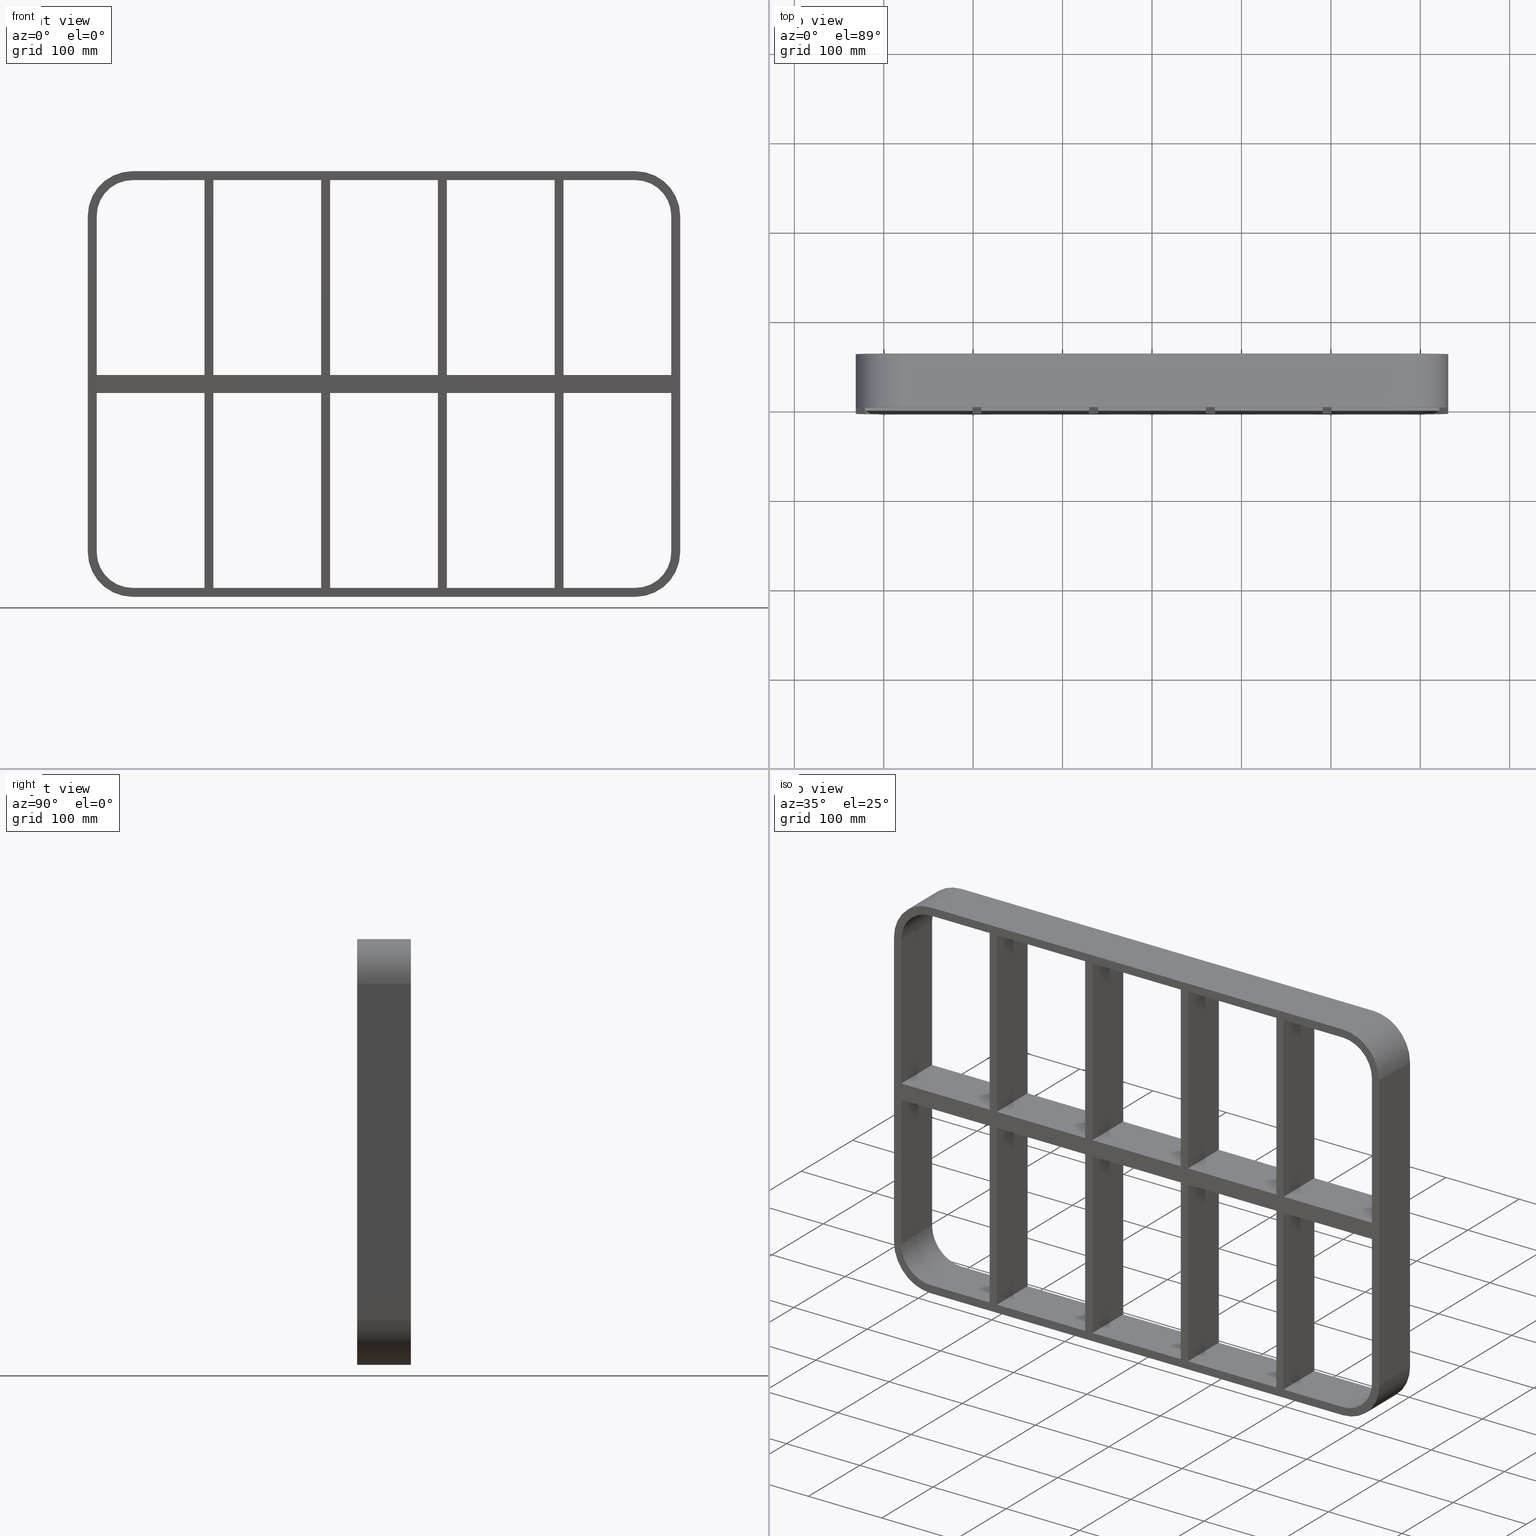
[diagram: canonical four-view strip — front | top / right | iso, engineering-drawing reading convention]
A machine part, canonical four-view strip (front | top / right | iso — engineering-drawing reading convention). The complete STEP part file that produces these views, byte-faithful:
ISO-10303-21;
HEADER;
/****************************************************************
 * Generated by software with PDElib inside                    *
 * PDElib Version v51a, created Wed 11/30/2011                  *
 * ITI Transcendata (http://www.transcendata.com/)              *
 ****************************************************************/
FILE_DESCRIPTION((''),'2;1');
FILE_NAME('N:\\Projects\\Ongoing_Projects\\12403 Transit Designer\\Product-data\\Product Data\\Transit designer Cad Generator\\CreatedFiles\\STEP\\SRCR40-6+6X5.stp','2014-10-31T11:34:40',(''),(''),'Autodesk Inventor 2013','Autodesk Inventor 2013','');
FILE_SCHEMA(('AUTOMOTIVE_DESIGN { 1 0 10303 214 1 1 1 1 }'));
ENDSEC;
DATA;
#5=APPLICATION_CONTEXT('automotive design');
#6=APPLICATION_PROTOCOL_DEFINITION('International Standard','automotive_design',2001,#5);
#7=PRODUCT_CONTEXT('',#5,'mechanical');
#8=PRODUCT('GH-ISO','GH-ISO',$,(#7));
#9=PRODUCT_RELATED_PRODUCT_CATEGORY('part',$,(#8));
#10=PRODUCT_DEFINITION_FORMATION('',$,#8);
#11=PRODUCT_DEFINITION_CONTEXT('part definition',#5,'design');
#12=PRODUCT_DEFINITION('',$,#10,#11);
#18=(NAMED_UNIT(*)PLANE_ANGLE_UNIT()SI_UNIT($,.RADIAN.));
#19=DIMENSIONAL_EXPONENTS(0.0,0.0,0.0,0.0,0.0,0.0,0.0);
#20=PLANE_ANGLE_MEASURE_WITH_UNIT(PLANE_ANGLE_MEASURE(0.0174532925),#18);
#24=(CONVERSION_BASED_UNIT('DEGREE',#20)NAMED_UNIT(#19)PLANE_ANGLE_UNIT());
#28=(NAMED_UNIT(*)SI_UNIT($,.STERADIAN.)SOLID_ANGLE_UNIT());
#32=(LENGTH_UNIT()NAMED_UNIT(*)SI_UNIT(.MILLI.,.METRE.));
#34=UNCERTAINTY_MEASURE_WITH_UNIT(LENGTH_MEASURE(0.01),#32,'DISTANCE_ACCURACY_VALUE','');
#36=(GEOMETRIC_REPRESENTATION_CONTEXT(3)GLOBAL_UNCERTAINTY_ASSIGNED_CONTEXT((#34))GLOBAL_UNIT_ASSIGNED_CONTEXT((#24,#28,#32))REPRESENTATION_CONTEXT('None','None'));
#37=AXIS2_PLACEMENT_3D('',#38,#39,#40);
#38=CARTESIAN_POINT('',(0.0,0.0,0.0));
#39=DIRECTION('',(0.0,0.0,1.0));
#40=DIRECTION('',(1.0,0.0,0.0));
#41=SHAPE_REPRESENTATION('',(#37),#36);
#42=PRODUCT_DEFINITION_SHAPE('','',#12);
#43=SHAPE_DEFINITION_REPRESENTATION(#42,#41);
#49=(NAMED_UNIT(*)PLANE_ANGLE_UNIT()SI_UNIT($,.RADIAN.));
#50=DIMENSIONAL_EXPONENTS(0.0,0.0,0.0,0.0,0.0,0.0,0.0);
#51=PLANE_ANGLE_MEASURE_WITH_UNIT(PLANE_ANGLE_MEASURE(0.0174532925),#49);
#55=(CONVERSION_BASED_UNIT('DEGREE',#51)NAMED_UNIT(#50)PLANE_ANGLE_UNIT());
#59=(NAMED_UNIT(*)SI_UNIT($,.STERADIAN.)SOLID_ANGLE_UNIT());
#63=(LENGTH_UNIT()NAMED_UNIT(*)SI_UNIT(.MILLI.,.METRE.));
#65=UNCERTAINTY_MEASURE_WITH_UNIT(LENGTH_MEASURE(0.000001),#63,'DISTANCE_ACCURACY_VALUE','');
#67=(GEOMETRIC_REPRESENTATION_CONTEXT(3)GLOBAL_UNCERTAINTY_ASSIGNED_CONTEXT((#65))GLOBAL_UNIT_ASSIGNED_CONTEXT((#55,#59,#63))REPRESENTATION_CONTEXT('','3D'));
#68=CARTESIAN_POINT('',(190.74999999999861,-3.0,-228.0));
#69=DIRECTION('',(-1.0,0.0,0.0));
#70=DIRECTION('',(0.0,0.0,1.0));
#71=AXIS2_PLACEMENT_3D('',#68,#69,#70);
#72=PLANE('',#71);
#73=CARTESIAN_POINT('',(190.74999999999858,-3.0,10.0));
#74=VERTEX_POINT('',#73);
#75=CARTESIAN_POINT('',(190.74999999999858,57.0,10.0));
#76=VERTEX_POINT('',#75);
#77=CARTESIAN_POINT('',(190.74999999999861,-3.0,10.0));
#78=DIRECTION('',(0.0,1.0,0.0));
#79=VECTOR('',#78,60.0);
#80=LINE('',#77,#79);
#81=EDGE_CURVE('',#74,#76,#80,.T.);
#82=ORIENTED_EDGE('',*,*,#81,.F.);
#83=CARTESIAN_POINT('',(190.74999999999858,-3.0,228.0));
#84=VERTEX_POINT('',#83);
#85=CARTESIAN_POINT('',(190.74999999999858,-3.0,10.0));
#86=DIRECTION('',(0.0,0.0,1.0));
#87=VECTOR('',#86,218.0);
#88=LINE('',#85,#87);
#89=EDGE_CURVE('',#74,#84,#88,.T.);
#90=ORIENTED_EDGE('',*,*,#89,.T.);
#91=CARTESIAN_POINT('',(190.74999999999858,57.0,228.0));
#92=VERTEX_POINT('',#91);
#93=CARTESIAN_POINT('',(190.74999999999861,57.000000000000007,228.0));
#94=DIRECTION('',(0.0,-1.0,0.0));
#95=VECTOR('',#94,60.000000000000007);
#96=LINE('',#93,#95);
#97=EDGE_CURVE('',#92,#84,#96,.T.);
#98=ORIENTED_EDGE('',*,*,#97,.F.);
#99=CARTESIAN_POINT('',(190.74999999999858,57.0,10.0));
#100=DIRECTION('',(0.0,0.0,1.0));
#101=VECTOR('',#100,218.0);
#102=LINE('',#99,#101);
#103=EDGE_CURVE('',#76,#92,#102,.T.);
#104=ORIENTED_EDGE('',*,*,#103,.F.);
#105=EDGE_LOOP('',(#82,#90,#98,#104));
#106=FACE_OUTER_BOUND('',#105,.T.);
#107=ADVANCED_FACE('',(#106),#72,.T.);
#108=CARTESIAN_POINT('',(190.74999999999861,-3.0,-228.0));
#109=DIRECTION('',(-1.0,0.0,0.0));
#110=DIRECTION('',(0.0,0.0,1.0));
#111=AXIS2_PLACEMENT_3D('',#108,#109,#110);
#112=PLANE('',#111);
#113=CARTESIAN_POINT('',(190.74999999999861,57.0,-10.000000000009273));
#114=VERTEX_POINT('',#113);
#115=CARTESIAN_POINT('',(190.74999999999861,-3.0,-10.000000000009273));
#116=VERTEX_POINT('',#115);
#117=CARTESIAN_POINT('',(190.74999999999861,57.0,-10.000000000009273));
#118=DIRECTION('',(0.0,-1.0,0.0));
#119=VECTOR('',#118,60.0);
#120=LINE('',#117,#119);
#121=EDGE_CURVE('',#114,#116,#120,.T.);
#122=ORIENTED_EDGE('',*,*,#121,.F.);
#123=CARTESIAN_POINT('',(190.74999999999861,57.0,-228.0));
#124=VERTEX_POINT('',#123);
#125=CARTESIAN_POINT('',(190.74999999999861,57.0,-228.0));
#126=DIRECTION('',(0.0,0.0,1.0));
#127=VECTOR('',#126,217.99999999999073);
#128=LINE('',#125,#127);
#129=EDGE_CURVE('',#124,#114,#128,.T.);
#130=ORIENTED_EDGE('',*,*,#129,.F.);
#131=CARTESIAN_POINT('',(190.74999999999861,-3.0,-228.0));
#132=VERTEX_POINT('',#131);
#133=CARTESIAN_POINT('',(190.74999999999861,-3.0,-228.0));
#134=DIRECTION('',(0.0,1.0,0.0));
#135=VECTOR('',#134,60.000000000000007);
#136=LINE('',#133,#135);
#137=EDGE_CURVE('',#132,#124,#136,.T.);
#138=ORIENTED_EDGE('',*,*,#137,.F.);
#139=CARTESIAN_POINT('',(190.74999999999861,-3.0,-228.0));
#140=DIRECTION('',(0.0,0.0,1.0));
#141=VECTOR('',#140,217.99999999999073);
#142=LINE('',#139,#141);
#143=EDGE_CURVE('',#132,#116,#142,.T.);
#144=ORIENTED_EDGE('',*,*,#143,.T.);
#145=EDGE_LOOP('',(#122,#130,#138,#144));
#146=FACE_OUTER_BOUND('',#145,.T.);
#147=ADVANCED_FACE('',(#146),#112,.T.);
#148=CARTESIAN_POINT('',(200.74999999999278,-3.0,228.0));
#149=DIRECTION('',(1.0,0.0,0.0));
#150=DIRECTION('',(0.0,0.0,-1.0));
#151=AXIS2_PLACEMENT_3D('',#148,#149,#150);
#152=PLANE('',#151);
#153=CARTESIAN_POINT('',(200.74999999999278,57.0,10.0));
#154=VERTEX_POINT('',#153);
#155=CARTESIAN_POINT('',(200.74999999999278,-3.0,10.0));
#156=VERTEX_POINT('',#155);
#157=CARTESIAN_POINT('',(200.74999999999278,57.0,10.0));
#158=DIRECTION('',(0.0,-1.0,0.0));
#159=VECTOR('',#158,60.0);
#160=LINE('',#157,#159);
#161=EDGE_CURVE('',#154,#156,#160,.T.);
#162=ORIENTED_EDGE('',*,*,#161,.F.);
#163=CARTESIAN_POINT('',(200.74999999999278,57.0,228.0));
#164=VERTEX_POINT('',#163);
#165=CARTESIAN_POINT('',(200.74999999999278,57.0,228.0));
#166=DIRECTION('',(0.0,0.0,-1.0));
#167=VECTOR('',#166,218.0);
#168=LINE('',#165,#167);
#169=EDGE_CURVE('',#164,#154,#168,.T.);
#170=ORIENTED_EDGE('',*,*,#169,.F.);
#171=CARTESIAN_POINT('',(200.74999999999278,-3.0,228.0));
#172=VERTEX_POINT('',#171);
#173=CARTESIAN_POINT('',(200.74999999999278,-3.0,228.0));
#174=DIRECTION('',(0.0,1.0,0.0));
#175=VECTOR('',#174,60.000000000000007);
#176=LINE('',#173,#175);
#177=EDGE_CURVE('',#172,#164,#176,.T.);
#178=ORIENTED_EDGE('',*,*,#177,.F.);
#179=CARTESIAN_POINT('',(200.74999999999278,-3.0,228.0));
#180=DIRECTION('',(0.0,0.0,-1.0));
#181=VECTOR('',#180,218.0);
#182=LINE('',#179,#181);
#183=EDGE_CURVE('',#172,#156,#182,.T.);
#184=ORIENTED_EDGE('',*,*,#183,.T.);
#185=EDGE_LOOP('',(#162,#170,#178,#184));
#186=FACE_OUTER_BOUND('',#185,.T.);
#187=ADVANCED_FACE('',(#186),#152,.T.);
#188=CARTESIAN_POINT('',(200.74999999999278,-3.0,228.0));
#189=DIRECTION('',(1.0,0.0,0.0));
#190=DIRECTION('',(0.0,0.0,-1.0));
#191=AXIS2_PLACEMENT_3D('',#188,#189,#190);
#192=PLANE('',#191);
#193=CARTESIAN_POINT('',(200.74999999999278,-3.0,-10.000000000009273));
#194=VERTEX_POINT('',#193);
#195=CARTESIAN_POINT('',(200.74999999999278,57.0,-10.000000000009273));
#196=VERTEX_POINT('',#195);
#197=CARTESIAN_POINT('',(200.74999999999278,-3.0,-10.000000000009273));
#198=DIRECTION('',(0.0,1.0,0.0));
#199=VECTOR('',#198,60.0);
#200=LINE('',#197,#199);
#201=EDGE_CURVE('',#194,#196,#200,.T.);
#202=ORIENTED_EDGE('',*,*,#201,.F.);
#203=CARTESIAN_POINT('',(200.74999999999278,-3.0,-227.99999999998479));
#204=VERTEX_POINT('',#203);
#205=CARTESIAN_POINT('',(200.74999999999278,-3.0,-10.000000000009265));
#206=DIRECTION('',(0.0,0.0,-1.0));
#207=VECTOR('',#206,217.99999999997556);
#208=LINE('',#205,#207);
#209=EDGE_CURVE('',#194,#204,#208,.T.);
#210=ORIENTED_EDGE('',*,*,#209,.T.);
#211=CARTESIAN_POINT('',(200.74999999999278,57.0,-227.99999999998479));
#212=VERTEX_POINT('',#211);
#213=CARTESIAN_POINT('',(200.74999999999278,57.000000000000007,-228.0));
#214=DIRECTION('',(0.0,-1.0,0.0));
#215=VECTOR('',#214,60.000000000000007);
#216=LINE('',#213,#215);
#217=EDGE_CURVE('',#212,#204,#216,.T.);
#218=ORIENTED_EDGE('',*,*,#217,.F.);
#219=CARTESIAN_POINT('',(200.74999999999278,57.0,-10.000000000009265));
#220=DIRECTION('',(0.0,0.0,-1.0));
#221=VECTOR('',#220,217.99999999997556);
#222=LINE('',#219,#221);
#223=EDGE_CURVE('',#196,#212,#222,.T.);
#224=ORIENTED_EDGE('',*,*,#223,.F.);
#225=EDGE_LOOP('',(#202,#210,#218,#224));
#226=FACE_OUTER_BOUND('',#225,.T.);
#227=ADVANCED_FACE('',(#226),#192,.T.);
#228=CARTESIAN_POINT('',(60.249999999998565,-3.0,-228.0));
#229=DIRECTION('',(-1.0,0.0,0.0));
#230=DIRECTION('',(0.0,0.0,1.0));
#231=AXIS2_PLACEMENT_3D('',#228,#229,#230);
#232=PLANE('',#231);
#233=CARTESIAN_POINT('',(60.24999999999855,-3.0,10.0));
#234=VERTEX_POINT('',#233);
#235=CARTESIAN_POINT('',(60.24999999999855,57.0,10.0));
#236=VERTEX_POINT('',#235);
#237=CARTESIAN_POINT('',(60.249999999998558,-3.0,10.0));
#238=DIRECTION('',(0.0,1.0,0.0));
#239=VECTOR('',#238,60.0);
#240=LINE('',#237,#239);
#241=EDGE_CURVE('',#234,#236,#240,.T.);
#242=ORIENTED_EDGE('',*,*,#241,.F.);
#243=CARTESIAN_POINT('',(60.249999999998529,-3.0,228.0));
#244=VERTEX_POINT('',#243);
#245=CARTESIAN_POINT('',(60.249999999998543,-3.0,10.0));
#246=DIRECTION('',(0.0,0.0,1.0));
#247=VECTOR('',#246,218.0);
#248=LINE('',#245,#247);
#249=EDGE_CURVE('',#234,#244,#248,.T.);
#250=ORIENTED_EDGE('',*,*,#249,.T.);
#251=CARTESIAN_POINT('',(60.249999999998529,57.0,228.0));
#252=VERTEX_POINT('',#251);
#253=CARTESIAN_POINT('',(60.249999999998508,57.000000000000007,228.0));
#254=DIRECTION('',(0.0,-1.0,0.0));
#255=VECTOR('',#254,60.000000000000007);
#256=LINE('',#253,#255);
#257=EDGE_CURVE('',#252,#244,#256,.T.);
#258=ORIENTED_EDGE('',*,*,#257,.F.);
#259=CARTESIAN_POINT('',(60.249999999998543,57.0,10.0));
#260=DIRECTION('',(0.0,0.0,1.0));
#261=VECTOR('',#260,218.0);
#262=LINE('',#259,#261);
#263=EDGE_CURVE('',#236,#252,#262,.T.);
#264=ORIENTED_EDGE('',*,*,#263,.F.);
#265=EDGE_LOOP('',(#242,#250,#258,#264));
#266=FACE_OUTER_BOUND('',#265,.T.);
#267=ADVANCED_FACE('',(#266),#232,.T.);
#268=CARTESIAN_POINT('',(60.249999999998565,-3.0,-228.0));
#269=DIRECTION('',(-1.0,0.0,0.0));
#270=DIRECTION('',(0.0,0.0,1.0));
#271=AXIS2_PLACEMENT_3D('',#268,#269,#270);
#272=PLANE('',#271);
#273=CARTESIAN_POINT('',(60.24999999999855,57.0,-10.000000000009308));
#274=VERTEX_POINT('',#273);
#275=CARTESIAN_POINT('',(60.24999999999855,-3.0,-10.000000000009308));
#276=VERTEX_POINT('',#275);
#277=CARTESIAN_POINT('',(60.249999999998558,57.0,-10.00000000000929));
#278=DIRECTION('',(0.0,-1.0,0.0));
#279=VECTOR('',#278,60.0);
#280=LINE('',#277,#279);
#281=EDGE_CURVE('',#274,#276,#280,.T.);
#282=ORIENTED_EDGE('',*,*,#281,.F.);
#283=CARTESIAN_POINT('',(60.249999999998565,57.0,-228.0));
#284=VERTEX_POINT('',#283);
#285=CARTESIAN_POINT('',(60.249999999998565,57.0,-228.0));
#286=DIRECTION('',(0.0,0.0,1.0));
#287=VECTOR('',#286,217.99999999999071);
#288=LINE('',#285,#287);
#289=EDGE_CURVE('',#284,#274,#288,.T.);
#290=ORIENTED_EDGE('',*,*,#289,.F.);
#291=CARTESIAN_POINT('',(60.249999999998565,-3.0,-228.0));
#292=VERTEX_POINT('',#291);
#293=CARTESIAN_POINT('',(60.249999999998565,-3.0,-228.0));
#294=DIRECTION('',(0.0,1.0,0.0));
#295=VECTOR('',#294,60.000000000000007);
#296=LINE('',#293,#295);
#297=EDGE_CURVE('',#292,#284,#296,.T.);
#298=ORIENTED_EDGE('',*,*,#297,.F.);
#299=CARTESIAN_POINT('',(60.249999999998565,-3.0,-228.0));
#300=DIRECTION('',(0.0,0.0,1.0));
#301=VECTOR('',#300,217.99999999999071);
#302=LINE('',#299,#301);
#303=EDGE_CURVE('',#292,#276,#302,.T.);
#304=ORIENTED_EDGE('',*,*,#303,.T.);
#305=EDGE_LOOP('',(#282,#290,#298,#304));
#306=FACE_OUTER_BOUND('',#305,.T.);
#307=ADVANCED_FACE('',(#306),#272,.T.);
#308=CARTESIAN_POINT('',(70.249999999992738,-3.0,228.0));
#309=DIRECTION('',(1.0,0.0,0.0));
#310=DIRECTION('',(0.0,0.0,-1.0));
#311=AXIS2_PLACEMENT_3D('',#308,#309,#310);
#312=PLANE('',#311);
#313=CARTESIAN_POINT('',(70.249999999992738,57.0,10.0));
#314=VERTEX_POINT('',#313);
#315=CARTESIAN_POINT('',(70.249999999992738,-3.0,10.0));
#316=VERTEX_POINT('',#315);
#317=CARTESIAN_POINT('',(70.249999999992738,57.0,10.0));
#318=DIRECTION('',(0.0,-1.0,0.0));
#319=VECTOR('',#318,60.0);
#320=LINE('',#317,#319);
#321=EDGE_CURVE('',#314,#316,#320,.T.);
#322=ORIENTED_EDGE('',*,*,#321,.F.);
#323=CARTESIAN_POINT('',(70.249999999992738,57.0,228.0));
#324=VERTEX_POINT('',#323);
#325=CARTESIAN_POINT('',(70.249999999992738,57.0,228.0));
#326=DIRECTION('',(0.0,0.0,-1.0));
#327=VECTOR('',#326,218.0);
#328=LINE('',#325,#327);
#329=EDGE_CURVE('',#324,#314,#328,.T.);
#330=ORIENTED_EDGE('',*,*,#329,.F.);
#331=CARTESIAN_POINT('',(70.249999999992738,-3.0,228.0));
#332=VERTEX_POINT('',#331);
#333=CARTESIAN_POINT('',(70.249999999992738,-3.0,228.0));
#334=DIRECTION('',(0.0,1.0,0.0));
#335=VECTOR('',#334,60.000000000000007);
#336=LINE('',#333,#335);
#337=EDGE_CURVE('',#332,#324,#336,.T.);
#338=ORIENTED_EDGE('',*,*,#337,.F.);
#339=CARTESIAN_POINT('',(70.249999999992738,-3.0,228.0));
#340=DIRECTION('',(0.0,0.0,-1.0));
#341=VECTOR('',#340,218.0);
#342=LINE('',#339,#341);
#343=EDGE_CURVE('',#332,#316,#342,.T.);
#344=ORIENTED_EDGE('',*,*,#343,.T.);
#345=EDGE_LOOP('',(#322,#330,#338,#344));
#346=FACE_OUTER_BOUND('',#345,.T.);
#347=ADVANCED_FACE('',(#346),#312,.T.);
#348=CARTESIAN_POINT('',(70.249999999992738,-3.0,228.0));
#349=DIRECTION('',(1.0,0.0,0.0));
#350=DIRECTION('',(0.0,0.0,-1.0));
#351=AXIS2_PLACEMENT_3D('',#348,#349,#350);
#352=PLANE('',#351);
#353=CARTESIAN_POINT('',(70.249999999992738,-3.0,-10.000000000009308));
#354=VERTEX_POINT('',#353);
#355=CARTESIAN_POINT('',(70.249999999992738,57.0,-10.000000000009308));
#356=VERTEX_POINT('',#355);
#357=CARTESIAN_POINT('',(70.249999999992738,-3.0,-10.00000000000929));
#358=DIRECTION('',(0.0,1.0,0.0));
#359=VECTOR('',#358,60.0);
#360=LINE('',#357,#359);
#361=EDGE_CURVE('',#354,#356,#360,.T.);
#362=ORIENTED_EDGE('',*,*,#361,.F.);
#363=CARTESIAN_POINT('',(70.249999999992738,-3.0,-227.99999999998479));
#364=VERTEX_POINT('',#363);
#365=CARTESIAN_POINT('',(70.249999999992738,-3.0,-10.000000000009322));
#366=DIRECTION('',(0.0,0.0,-1.0));
#367=VECTOR('',#366,217.9999999999755);
#368=LINE('',#365,#367);
#369=EDGE_CURVE('',#354,#364,#368,.T.);
#370=ORIENTED_EDGE('',*,*,#369,.T.);
#371=CARTESIAN_POINT('',(70.249999999992738,57.0,-227.99999999998479));
#372=VERTEX_POINT('',#371);
#373=CARTESIAN_POINT('',(70.249999999992738,57.000000000000007,-228.0));
#374=DIRECTION('',(0.0,-1.0,0.0));
#375=VECTOR('',#374,60.000000000000007);
#376=LINE('',#373,#375);
#377=EDGE_CURVE('',#372,#364,#376,.T.);
#378=ORIENTED_EDGE('',*,*,#377,.F.);
#379=CARTESIAN_POINT('',(70.249999999992738,57.0,-10.000000000009322));
#380=DIRECTION('',(0.0,0.0,-1.0));
#381=VECTOR('',#380,217.9999999999755);
#382=LINE('',#379,#381);
#383=EDGE_CURVE('',#356,#372,#382,.T.);
#384=ORIENTED_EDGE('',*,*,#383,.F.);
#385=EDGE_LOOP('',(#362,#370,#378,#384));
#386=FACE_OUTER_BOUND('',#385,.T.);
#387=ADVANCED_FACE('',(#386),#352,.T.);
#388=CARTESIAN_POINT('',(-70.25000000000145,-3.0,-228.0));
#389=DIRECTION('',(-1.0,0.0,0.0));
#390=DIRECTION('',(0.0,0.0,1.0));
#391=AXIS2_PLACEMENT_3D('',#388,#389,#390);
#392=PLANE('',#391);
#393=CARTESIAN_POINT('',(-70.250000000001464,-3.0,10.0));
#394=VERTEX_POINT('',#393);
#395=CARTESIAN_POINT('',(-70.250000000001464,57.0,10.0));
#396=VERTEX_POINT('',#395);
#397=CARTESIAN_POINT('',(-70.250000000001492,-3.0,10.0));
#398=DIRECTION('',(0.0,1.0,0.0));
#399=VECTOR('',#398,60.0);
#400=LINE('',#397,#399);
#401=EDGE_CURVE('',#394,#396,#400,.T.);
#402=ORIENTED_EDGE('',*,*,#401,.F.);
#403=CARTESIAN_POINT('',(-70.250000000001478,-3.0,228.0));
#404=VERTEX_POINT('',#403);
#405=CARTESIAN_POINT('',(-70.250000000001464,-3.0,10.0));
#406=DIRECTION('',(0.0,0.0,1.0));
#407=VECTOR('',#406,218.0);
#408=LINE('',#405,#407);
#409=EDGE_CURVE('',#394,#404,#408,.T.);
#410=ORIENTED_EDGE('',*,*,#409,.T.);
#411=CARTESIAN_POINT('',(-70.250000000001478,57.0,228.0));
#412=VERTEX_POINT('',#411);
#413=CARTESIAN_POINT('',(-70.250000000001492,57.000000000000007,228.0));
#414=DIRECTION('',(0.0,-1.0,0.0));
#415=VECTOR('',#414,60.000000000000007);
#416=LINE('',#413,#415);
#417=EDGE_CURVE('',#412,#404,#416,.T.);
#418=ORIENTED_EDGE('',*,*,#417,.F.);
#419=CARTESIAN_POINT('',(-70.250000000001464,57.0,10.0));
#420=DIRECTION('',(0.0,0.0,1.0));
#421=VECTOR('',#420,218.0);
#422=LINE('',#419,#421);
#423=EDGE_CURVE('',#396,#412,#422,.T.);
#424=ORIENTED_EDGE('',*,*,#423,.F.);
#425=EDGE_LOOP('',(#402,#410,#418,#424));
#426=FACE_OUTER_BOUND('',#425,.T.);
#427=ADVANCED_FACE('',(#426),#392,.T.);
#428=CARTESIAN_POINT('',(-70.25000000000145,-3.0,-228.0));
#429=DIRECTION('',(-1.0,0.0,0.0));
#430=DIRECTION('',(0.0,0.0,1.0));
#431=AXIS2_PLACEMENT_3D('',#428,#429,#430);
#432=PLANE('',#431);
#433=CARTESIAN_POINT('',(-70.250000000001464,57.0,-10.000000000009308));
#434=VERTEX_POINT('',#433);
#435=CARTESIAN_POINT('',(-70.250000000001464,-3.0,-10.000000000009308));
#436=VERTEX_POINT('',#435);
#437=CARTESIAN_POINT('',(-70.250000000001464,57.0,-10.000000000009326));
#438=DIRECTION('',(0.0,-1.0,0.0));
#439=VECTOR('',#438,60.0);
#440=LINE('',#437,#439);
#441=EDGE_CURVE('',#434,#436,#440,.T.);
#442=ORIENTED_EDGE('',*,*,#441,.F.);
#443=CARTESIAN_POINT('',(-70.25000000000145,57.0,-228.0));
#444=VERTEX_POINT('',#443);
#445=CARTESIAN_POINT('',(-70.25000000000145,57.0,-228.0));
#446=DIRECTION('',(0.0,0.0,1.0));
#447=VECTOR('',#446,217.99999999999071);
#448=LINE('',#445,#447);
#449=EDGE_CURVE('',#444,#434,#448,.T.);
#450=ORIENTED_EDGE('',*,*,#449,.F.);
#451=CARTESIAN_POINT('',(-70.25000000000145,-3.0,-228.0));
#452=VERTEX_POINT('',#451);
#453=CARTESIAN_POINT('',(-70.250000000001464,-3.0,-228.0));
#454=DIRECTION('',(0.0,1.0,0.0));
#455=VECTOR('',#454,60.000000000000007);
#456=LINE('',#453,#455);
#457=EDGE_CURVE('',#452,#444,#456,.T.);
#458=ORIENTED_EDGE('',*,*,#457,.F.);
#459=CARTESIAN_POINT('',(-70.25000000000145,-3.0,-228.0));
#460=DIRECTION('',(0.0,0.0,1.0));
#461=VECTOR('',#460,217.99999999999071);
#462=LINE('',#459,#461);
#463=EDGE_CURVE('',#452,#436,#462,.T.);
#464=ORIENTED_EDGE('',*,*,#463,.T.);
#465=EDGE_LOOP('',(#442,#450,#458,#464));
#466=FACE_OUTER_BOUND('',#465,.T.);
#467=ADVANCED_FACE('',(#466),#432,.T.);
#468=CARTESIAN_POINT('',(-60.250000000007269,-3.0,228.0));
#469=DIRECTION('',(1.0,0.0,0.0));
#470=DIRECTION('',(0.0,0.0,-1.0));
#471=AXIS2_PLACEMENT_3D('',#468,#469,#470);
#472=PLANE('',#471);
#473=CARTESIAN_POINT('',(-60.250000000007269,57.0,10.0));
#474=VERTEX_POINT('',#473);
#475=CARTESIAN_POINT('',(-60.250000000007269,-3.0,10.0));
#476=VERTEX_POINT('',#475);
#477=CARTESIAN_POINT('',(-60.25000000000729,57.0,10.0));
#478=DIRECTION('',(0.0,-1.0,0.0));
#479=VECTOR('',#478,60.0);
#480=LINE('',#477,#479);
#481=EDGE_CURVE('',#474,#476,#480,.T.);
#482=ORIENTED_EDGE('',*,*,#481,.F.);
#483=CARTESIAN_POINT('',(-60.250000000007269,57.0,228.0));
#484=VERTEX_POINT('',#483);
#485=CARTESIAN_POINT('',(-60.250000000007269,57.0,228.0));
#486=DIRECTION('',(0.0,0.0,-1.0));
#487=VECTOR('',#486,218.0);
#488=LINE('',#485,#487);
#489=EDGE_CURVE('',#484,#474,#488,.T.);
#490=ORIENTED_EDGE('',*,*,#489,.F.);
#491=CARTESIAN_POINT('',(-60.250000000007269,-3.0,228.0));
#492=VERTEX_POINT('',#491);
#493=CARTESIAN_POINT('',(-60.25000000000729,-3.0,228.0));
#494=DIRECTION('',(0.0,1.0,0.0));
#495=VECTOR('',#494,60.000000000000007);
#496=LINE('',#493,#495);
#497=EDGE_CURVE('',#492,#484,#496,.T.);
#498=ORIENTED_EDGE('',*,*,#497,.F.);
#499=CARTESIAN_POINT('',(-60.250000000007269,-3.0,228.0));
#500=DIRECTION('',(0.0,0.0,-1.0));
#501=VECTOR('',#500,218.0);
#502=LINE('',#499,#501);
#503=EDGE_CURVE('',#492,#476,#502,.T.);
#504=ORIENTED_EDGE('',*,*,#503,.T.);
#505=EDGE_LOOP('',(#482,#490,#498,#504));
#506=FACE_OUTER_BOUND('',#505,.T.);
#507=ADVANCED_FACE('',(#506),#472,.T.);
#508=CARTESIAN_POINT('',(-60.250000000007269,-3.0,228.0));
#509=DIRECTION('',(1.0,0.0,0.0));
#510=DIRECTION('',(0.0,0.0,-1.0));
#511=AXIS2_PLACEMENT_3D('',#508,#509,#510);
#512=PLANE('',#511);
#513=CARTESIAN_POINT('',(-60.250000000007269,-3.0,-10.000000000009308));
#514=VERTEX_POINT('',#513);
#515=CARTESIAN_POINT('',(-60.250000000007269,57.0,-10.000000000009308));
#516=VERTEX_POINT('',#515);
#517=CARTESIAN_POINT('',(-60.25000000000729,-3.0,-10.000000000009326));
#518=DIRECTION('',(0.0,1.0,0.0));
#519=VECTOR('',#518,60.0);
#520=LINE('',#517,#519);
#521=EDGE_CURVE('',#514,#516,#520,.T.);
#522=ORIENTED_EDGE('',*,*,#521,.F.);
#523=CARTESIAN_POINT('',(-60.250000000007269,-3.0,-227.99999999998479));
#524=VERTEX_POINT('',#523);
#525=CARTESIAN_POINT('',(-60.250000000007269,-3.0,-10.000000000009322));
#526=DIRECTION('',(0.0,0.0,-1.0));
#527=VECTOR('',#526,217.9999999999755);
#528=LINE('',#525,#527);
#529=EDGE_CURVE('',#514,#524,#528,.T.);
#530=ORIENTED_EDGE('',*,*,#529,.T.);
#531=CARTESIAN_POINT('',(-60.250000000007269,57.0,-227.99999999998479));
#532=VERTEX_POINT('',#531);
#533=CARTESIAN_POINT('',(-60.25000000000729,57.000000000000007,-228.0));
#534=DIRECTION('',(0.0,-1.0,0.0));
#535=VECTOR('',#534,60.000000000000007);
#536=LINE('',#533,#535);
#537=EDGE_CURVE('',#532,#524,#536,.T.);
#538=ORIENTED_EDGE('',*,*,#537,.F.);
#539=CARTESIAN_POINT('',(-60.250000000007269,57.0,-10.000000000009322));
#540=DIRECTION('',(0.0,0.0,-1.0));
#541=VECTOR('',#540,217.9999999999755);
#542=LINE('',#539,#541);
#543=EDGE_CURVE('',#516,#532,#542,.T.);
#544=ORIENTED_EDGE('',*,*,#543,.F.);
#545=EDGE_LOOP('',(#522,#530,#538,#544));
#546=FACE_OUTER_BOUND('',#545,.T.);
#547=ADVANCED_FACE('',(#546),#512,.T.);
#548=CARTESIAN_POINT('',(321.24999999999989,0.0,-228.0));
#549=DIRECTION('',(0.0,0.0,-1.0));
#550=DIRECTION('',(-1.0,0.0,0.0));
#551=AXIS2_PLACEMENT_3D('',#548,#549,#550);
#552=PLANE('',#551);
#553=ORIENTED_EDGE('',*,*,#457,.T.);
#554=CARTESIAN_POINT('',(-190.75000000000728,57.0,-227.99999999998479));
#555=VERTEX_POINT('',#554);
#556=CARTESIAN_POINT('',(-190.75000000000728,57.0,-228.0));
#557=DIRECTION('',(1.0,0.0,0.0));
#558=VECTOR('',#557,120.50000000000585);
#559=LINE('',#556,#558);
#560=EDGE_CURVE('',#555,#444,#559,.T.);
#561=ORIENTED_EDGE('',*,*,#560,.F.);
#562=CARTESIAN_POINT('',(-190.75000000000728,-3.0,-227.99999999998479));
#563=VERTEX_POINT('',#562);
#564=CARTESIAN_POINT('',(-190.75000000000728,57.000000000000007,-228.0));
#565=DIRECTION('',(0.0,-1.0,0.0));
#566=VECTOR('',#565,60.000000000000007);
#567=LINE('',#564,#566);
#568=EDGE_CURVE('',#555,#563,#567,.T.);
#569=ORIENTED_EDGE('',*,*,#568,.T.);
#570=CARTESIAN_POINT('',(-70.250000000001421,-3.0,-228.0));
#571=DIRECTION('',(-1.0,0.0,0.0));
#572=VECTOR('',#571,120.50000000000585);
#573=LINE('',#570,#572);
#574=EDGE_CURVE('',#452,#563,#573,.T.);
#575=ORIENTED_EDGE('',*,*,#574,.F.);
#576=EDGE_LOOP('',(#553,#561,#569,#575));
#577=FACE_OUTER_BOUND('',#576,.T.);
#578=ADVANCED_FACE('',(#577),#552,.F.);
#579=CARTESIAN_POINT('',(321.24999999999989,0.0,-228.0));
#580=DIRECTION('',(0.0,0.0,-1.0));
#581=DIRECTION('',(-1.0,0.0,0.0));
#582=AXIS2_PLACEMENT_3D('',#579,#580,#581);
#583=PLANE('',#582);
#584=ORIENTED_EDGE('',*,*,#297,.T.);
#585=CARTESIAN_POINT('',(-60.250000000007248,57.0,-228.0));
#586=DIRECTION('',(1.0,0.0,0.0));
#587=VECTOR('',#586,120.50000000000583);
#588=LINE('',#585,#587);
#589=EDGE_CURVE('',#532,#284,#588,.T.);
#590=ORIENTED_EDGE('',*,*,#589,.F.);
#591=ORIENTED_EDGE('',*,*,#537,.T.);
#592=CARTESIAN_POINT('',(60.249999999998579,-3.0,-228.0));
#593=DIRECTION('',(-1.0,0.0,0.0));
#594=VECTOR('',#593,120.50000000000583);
#595=LINE('',#592,#594);
#596=EDGE_CURVE('',#292,#524,#595,.T.);
#597=ORIENTED_EDGE('',*,*,#596,.F.);
#598=EDGE_LOOP('',(#584,#590,#591,#597));
#599=FACE_OUTER_BOUND('',#598,.T.);
#600=ADVANCED_FACE('',(#599),#583,.F.);
#601=CARTESIAN_POINT('',(321.24999999999989,0.0,-228.0));
#602=DIRECTION('',(0.0,0.0,-1.0));
#603=DIRECTION('',(-1.0,0.0,0.0));
#604=AXIS2_PLACEMENT_3D('',#601,#602,#603);
#605=PLANE('',#604);
#606=ORIENTED_EDGE('',*,*,#137,.T.);
#607=CARTESIAN_POINT('',(70.249999999992752,57.0,-228.0));
#608=DIRECTION('',(1.0,0.0,0.0));
#609=VECTOR('',#608,120.50000000000588);
#610=LINE('',#607,#609);
#611=EDGE_CURVE('',#372,#124,#610,.T.);
#612=ORIENTED_EDGE('',*,*,#611,.F.);
#613=ORIENTED_EDGE('',*,*,#377,.T.);
#614=CARTESIAN_POINT('',(190.74999999999864,-3.0,-228.0));
#615=DIRECTION('',(-1.0,0.0,0.0));
#616=VECTOR('',#615,120.50000000000588);
#617=LINE('',#614,#616);
#618=EDGE_CURVE('',#132,#364,#617,.T.);
#619=ORIENTED_EDGE('',*,*,#618,.F.);
#620=EDGE_LOOP('',(#606,#612,#613,#619));
#621=FACE_OUTER_BOUND('',#620,.T.);
#622=ADVANCED_FACE('',(#621),#605,.F.);
#623=CARTESIAN_POINT('',(321.24999999999989,0.0,-228.0));
#624=DIRECTION('',(0.0,0.0,-1.0));
#625=DIRECTION('',(-1.0,0.0,0.0));
#626=AXIS2_PLACEMENT_3D('',#623,#624,#625);
#627=PLANE('',#626);
#628=ORIENTED_EDGE('',*,*,#217,.T.);
#629=CARTESIAN_POINT('',(281.24999999999989,-3.0,-228.0));
#630=VERTEX_POINT('',#629);
#631=CARTESIAN_POINT('',(281.24999999999989,-3.0,-228.0));
#632=DIRECTION('',(-1.0,0.0,0.0));
#633=VECTOR('',#632,80.500000000007105);
#634=LINE('',#631,#633);
#635=EDGE_CURVE('',#630,#204,#634,.T.);
#636=ORIENTED_EDGE('',*,*,#635,.F.);
#637=CARTESIAN_POINT('',(281.24999999999989,57.0,-228.0));
#638=VERTEX_POINT('',#637);
#639=CARTESIAN_POINT('',(281.24999999999989,57.0,-228.0));
#640=DIRECTION('',(0.0,-1.0,0.0));
#641=VECTOR('',#640,60.0);
#642=LINE('',#639,#641);
#643=EDGE_CURVE('',#638,#630,#642,.T.);
#644=ORIENTED_EDGE('',*,*,#643,.F.);
#645=CARTESIAN_POINT('',(200.74999999999278,57.0,-228.0));
#646=DIRECTION('',(1.0,0.0,0.0));
#647=VECTOR('',#646,80.500000000007105);
#648=LINE('',#645,#647);
#649=EDGE_CURVE('',#212,#638,#648,.T.);
#650=ORIENTED_EDGE('',*,*,#649,.F.);
#651=EDGE_LOOP('',(#628,#636,#644,#650));
#652=FACE_OUTER_BOUND('',#651,.T.);
#653=ADVANCED_FACE('',(#652),#627,.F.);
#654=CARTESIAN_POINT('',(0.0,-3.0,0.0));
#655=DIRECTION('',(0.0,1.0,0.0));
#656=DIRECTION('',(0.0,0.0,1.0));
#657=AXIS2_PLACEMENT_3D('',#654,#655,#656);
#658=PLANE('',#657);
#659=CARTESIAN_POINT('',(331.25,-3.0,-188.0));
#660=VERTEX_POINT('',#659);
#661=CARTESIAN_POINT('',(281.25,-3.0,-238.0));
#662=VERTEX_POINT('',#661);
#663=CARTESIAN_POINT('',(281.25,-3.0,-188.0));
#664=DIRECTION('',(0.0,1.0,0.0));
#665=DIRECTION('',(0.707106781186547,0.0,-0.707106781186547));
#666=AXIS2_PLACEMENT_3D('',#663,#664,#665);
#667=CIRCLE('',#666,49.999999999999986);
#668=EDGE_CURVE('',#660,#662,#667,.T.);
#669=ORIENTED_EDGE('',*,*,#668,.F.);
#670=CARTESIAN_POINT('',(331.25,-3.0,188.0));
#671=VERTEX_POINT('',#670);
#672=CARTESIAN_POINT('',(331.25,-3.0,-188.0));
#673=DIRECTION('',(0.0,0.0,1.0));
#674=VECTOR('',#673,376.0);
#675=LINE('',#672,#674);
#676=EDGE_CURVE('',#660,#671,#675,.T.);
#677=ORIENTED_EDGE('',*,*,#676,.T.);
#678=CARTESIAN_POINT('',(281.25,-3.0,238.0));
#679=VERTEX_POINT('',#678);
#680=CARTESIAN_POINT('',(281.25,-3.0,188.0));
#681=DIRECTION('',(0.0,1.0,0.0));
#682=DIRECTION('',(0.707106781186547,0.0,0.707106781186547));
#683=AXIS2_PLACEMENT_3D('',#680,#681,#682);
#684=CIRCLE('',#683,49.999999999999986);
#685=EDGE_CURVE('',#679,#671,#684,.T.);
#686=ORIENTED_EDGE('',*,*,#685,.F.);
#687=CARTESIAN_POINT('',(-281.25,-3.0,238.0));
#688=VERTEX_POINT('',#687);
#689=CARTESIAN_POINT('',(281.25,-3.0,238.0));
#690=DIRECTION('',(-1.0,0.0,0.0));
#691=VECTOR('',#690,562.5);
#692=LINE('',#689,#691);
#693=EDGE_CURVE('',#679,#688,#692,.T.);
#694=ORIENTED_EDGE('',*,*,#693,.T.);
#695=CARTESIAN_POINT('',(-331.25,-3.0,188.0));
#696=VERTEX_POINT('',#695);
#697=CARTESIAN_POINT('',(-281.25,-3.0,188.0));
#698=DIRECTION('',(0.0,1.0,0.0));
#699=DIRECTION('',(-0.707106781186547,0.0,0.707106781186547));
#700=AXIS2_PLACEMENT_3D('',#697,#698,#699);
#701=CIRCLE('',#700,49.999999999999986);
#702=EDGE_CURVE('',#696,#688,#701,.T.);
#703=ORIENTED_EDGE('',*,*,#702,.F.);
#704=CARTESIAN_POINT('',(-331.25,-3.0,-188.0));
#705=VERTEX_POINT('',#704);
#706=CARTESIAN_POINT('',(-331.25,-3.0,188.0));
#707=DIRECTION('',(0.0,0.0,-1.0));
#708=VECTOR('',#707,376.0);
#709=LINE('',#706,#708);
#710=EDGE_CURVE('',#696,#705,#709,.T.);
#711=ORIENTED_EDGE('',*,*,#710,.T.);
#712=CARTESIAN_POINT('',(-281.25,-3.0,-238.0));
#713=VERTEX_POINT('',#712);
#714=CARTESIAN_POINT('',(-281.25,-3.0,-188.0));
#715=DIRECTION('',(0.0,1.0,0.0));
#716=DIRECTION('',(-0.707106781186547,0.0,-0.707106781186547));
#717=AXIS2_PLACEMENT_3D('',#714,#715,#716);
#718=CIRCLE('',#717,49.999999999999986);
#719=EDGE_CURVE('',#713,#705,#718,.T.);
#720=ORIENTED_EDGE('',*,*,#719,.F.);
#721=CARTESIAN_POINT('',(-281.25,-3.0,-238.0));
#722=DIRECTION('',(1.0,0.0,0.0));
#723=VECTOR('',#722,562.5);
#724=LINE('',#721,#723);
#725=EDGE_CURVE('',#713,#662,#724,.T.);
#726=ORIENTED_EDGE('',*,*,#725,.T.);
#727=EDGE_LOOP('',(#669,#677,#686,#694,#703,#711,#720,#726));
#728=FACE_OUTER_BOUND('',#727,.T.);
#729=ORIENTED_EDGE('',*,*,#618,.T.);
#730=ORIENTED_EDGE('',*,*,#369,.F.);
#731=CARTESIAN_POINT('',(190.74999999999861,-3.0,-10.000000000009265));
#732=DIRECTION('',(-1.0,0.0,0.0));
#733=VECTOR('',#732,120.50000000000588);
#734=LINE('',#731,#733);
#735=EDGE_CURVE('',#116,#354,#734,.T.);
#736=ORIENTED_EDGE('',*,*,#735,.F.);
#737=ORIENTED_EDGE('',*,*,#143,.F.);
#738=EDGE_LOOP('',(#729,#730,#736,#737));
#739=FACE_BOUND('',#738,.T.);
#740=CARTESIAN_POINT('',(70.249999999992724,-3.0,10.0));
#741=DIRECTION('',(1.0,0.0,0.0));
#742=VECTOR('',#741,120.50000000000585);
#743=LINE('',#740,#742);
#744=EDGE_CURVE('',#316,#74,#743,.T.);
#745=ORIENTED_EDGE('',*,*,#744,.F.);
#746=ORIENTED_EDGE('',*,*,#343,.F.);
#747=CARTESIAN_POINT('',(70.249999999992724,-3.0,228.0));
#748=DIRECTION('',(1.0,0.0,0.0));
#749=VECTOR('',#748,120.50000000000591);
#750=LINE('',#747,#749);
#751=EDGE_CURVE('',#332,#84,#750,.T.);
#752=ORIENTED_EDGE('',*,*,#751,.T.);
#753=ORIENTED_EDGE('',*,*,#89,.F.);
#754=EDGE_LOOP('',(#745,#746,#752,#753));
#755=FACE_BOUND('',#754,.T.);
#756=ORIENTED_EDGE('',*,*,#596,.T.);
#757=ORIENTED_EDGE('',*,*,#529,.F.);
#758=CARTESIAN_POINT('',(60.249999999998579,-3.0,-10.000000000009294));
#759=DIRECTION('',(-1.0,0.0,0.0));
#760=VECTOR('',#759,120.50000000000585);
#761=LINE('',#758,#760);
#762=EDGE_CURVE('',#276,#514,#761,.T.);
#763=ORIENTED_EDGE('',*,*,#762,.F.);
#764=ORIENTED_EDGE('',*,*,#303,.F.);
#765=EDGE_LOOP('',(#756,#757,#763,#764));
#766=FACE_BOUND('',#765,.T.);
#767=CARTESIAN_POINT('',(-60.250000000007276,-3.0,10.0));
#768=DIRECTION('',(1.0,0.0,0.0));
#769=VECTOR('',#768,120.5000000000058);
#770=LINE('',#767,#769);
#771=EDGE_CURVE('',#476,#234,#770,.T.);
#772=ORIENTED_EDGE('',*,*,#771,.F.);
#773=ORIENTED_EDGE('',*,*,#503,.F.);
#774=CARTESIAN_POINT('',(-60.250000000007276,-3.0,228.0));
#775=DIRECTION('',(1.0,0.0,0.0));
#776=VECTOR('',#775,120.5000000000058);
#777=LINE('',#774,#776);
#778=EDGE_CURVE('',#492,#244,#777,.T.);
#779=ORIENTED_EDGE('',*,*,#778,.T.);
#780=ORIENTED_EDGE('',*,*,#249,.F.);
#781=EDGE_LOOP('',(#772,#773,#779,#780));
#782=FACE_BOUND('',#781,.T.);
#783=ORIENTED_EDGE('',*,*,#574,.T.);
#784=CARTESIAN_POINT('',(-190.75000000000728,-3.0,-10.000000000009351));
#785=VERTEX_POINT('',#784);
#786=CARTESIAN_POINT('',(-190.75000000000728,-3.0,-10.000000000009351));
#787=DIRECTION('',(0.0,0.0,-1.0));
#788=VECTOR('',#787,217.99999999997547);
#789=LINE('',#786,#788);
#790=EDGE_CURVE('',#785,#563,#789,.T.);
#791=ORIENTED_EDGE('',*,*,#790,.F.);
#792=CARTESIAN_POINT('',(-70.250000000001478,-3.0,-10.000000000009324));
#793=DIRECTION('',(-1.0,0.0,0.0));
#794=VECTOR('',#793,120.5000000000058);
#795=LINE('',#792,#794);
#796=EDGE_CURVE('',#436,#785,#795,.T.);
#797=ORIENTED_EDGE('',*,*,#796,.F.);
#798=ORIENTED_EDGE('',*,*,#463,.F.);
#799=EDGE_LOOP('',(#783,#791,#797,#798));
#800=FACE_BOUND('',#799,.T.);
#801=CARTESIAN_POINT('',(-190.75000000000728,-3.0,10.0));
#802=VERTEX_POINT('',#801);
#803=CARTESIAN_POINT('',(-190.7500000000073,-3.0,10.0));
#804=DIRECTION('',(1.0,0.0,0.0));
#805=VECTOR('',#804,120.5000000000058);
#806=LINE('',#803,#805);
#807=EDGE_CURVE('',#802,#394,#806,.T.);
#808=ORIENTED_EDGE('',*,*,#807,.F.);
#809=CARTESIAN_POINT('',(-190.75000000000728,-3.0,228.0));
#810=VERTEX_POINT('',#809);
#811=CARTESIAN_POINT('',(-190.75000000000728,-3.0,228.0));
#812=DIRECTION('',(0.0,0.0,-1.0));
#813=VECTOR('',#812,218.0);
#814=LINE('',#811,#813);
#815=EDGE_CURVE('',#810,#802,#814,.T.);
#816=ORIENTED_EDGE('',*,*,#815,.F.);
#817=CARTESIAN_POINT('',(-190.75000000000728,-3.0,228.0));
#818=DIRECTION('',(1.0,0.0,0.0));
#819=VECTOR('',#818,120.5000000000058);
#820=LINE('',#817,#819);
#821=EDGE_CURVE('',#810,#404,#820,.T.);
#822=ORIENTED_EDGE('',*,*,#821,.T.);
#823=ORIENTED_EDGE('',*,*,#409,.F.);
#824=EDGE_LOOP('',(#808,#816,#822,#823));
#825=FACE_BOUND('',#824,.T.);
#826=ORIENTED_EDGE('',*,*,#183,.F.);
#827=CARTESIAN_POINT('',(281.24999999999989,-3.0,228.0));
#828=VERTEX_POINT('',#827);
#829=CARTESIAN_POINT('',(200.74999999999278,-3.0,228.0));
#830=DIRECTION('',(1.0,0.0,0.0));
#831=VECTOR('',#830,80.500000000007105);
#832=LINE('',#829,#831);
#833=EDGE_CURVE('',#172,#828,#832,.T.);
#834=ORIENTED_EDGE('',*,*,#833,.T.);
#835=CARTESIAN_POINT('',(321.24999999999989,-3.0,188.0));
#836=VERTEX_POINT('',#835);
#837=CARTESIAN_POINT('',(281.24999999999989,-3.0,188.0));
#838=DIRECTION('',(0.0,-1.0,0.0));
#839=DIRECTION('',(0.707106781186547,0.0,0.707106781186547));
#840=AXIS2_PLACEMENT_3D('',#837,#838,#839);
#841=CIRCLE('',#840,39.999999999999993);
#842=EDGE_CURVE('',#836,#828,#841,.T.);
#843=ORIENTED_EDGE('',*,*,#842,.F.);
#844=CARTESIAN_POINT('',(321.24999999999994,-3.0,10.0));
#845=VERTEX_POINT('',#844);
#846=CARTESIAN_POINT('',(321.24999999999989,-3.0,188.0));
#847=DIRECTION('',(0.0,0.0,-1.0));
#848=VECTOR('',#847,178.0);
#849=LINE('',#846,#848);
#850=EDGE_CURVE('',#836,#845,#849,.T.);
#851=ORIENTED_EDGE('',*,*,#850,.T.);
#852=CARTESIAN_POINT('',(200.74999999999272,-3.0,10.0));
#853=DIRECTION('',(1.0,0.0,0.0));
#854=VECTOR('',#853,120.50000000000716);
#855=LINE('',#852,#854);
#856=EDGE_CURVE('',#156,#845,#855,.T.);
#857=ORIENTED_EDGE('',*,*,#856,.F.);
#858=EDGE_LOOP('',(#826,#834,#843,#851,#857));
#859=FACE_BOUND('',#858,.T.);
#860=ORIENTED_EDGE('',*,*,#209,.F.);
#861=CARTESIAN_POINT('',(321.25,-3.0,-10.000000000009237));
#862=VERTEX_POINT('',#861);
#863=CARTESIAN_POINT('',(321.25,-3.0,-10.000000000009237));
#864=DIRECTION('',(-1.0,0.0,0.0));
#865=VECTOR('',#864,120.50000000000722);
#866=LINE('',#863,#865);
#867=EDGE_CURVE('',#862,#194,#866,.T.);
#868=ORIENTED_EDGE('',*,*,#867,.F.);
#869=CARTESIAN_POINT('',(321.24999999999989,-3.0,-188.00000000000006));
#870=VERTEX_POINT('',#869);
#871=CARTESIAN_POINT('',(321.24999999999989,-3.0,-10.000000000009237));
#872=DIRECTION('',(0.0,0.0,-1.0));
#873=VECTOR('',#872,177.99999999999076);
#874=LINE('',#871,#873);
#875=EDGE_CURVE('',#862,#870,#874,.T.);
#876=ORIENTED_EDGE('',*,*,#875,.T.);
#877=CARTESIAN_POINT('',(281.24999999999989,-3.0,-188.0));
#878=DIRECTION('',(0.0,-1.0,0.0));
#879=DIRECTION('',(0.707106781186547,0.0,-0.707106781186547));
#880=AXIS2_PLACEMENT_3D('',#877,#878,#879);
#881=CIRCLE('',#880,39.999999999999993);
#882=EDGE_CURVE('',#630,#870,#881,.T.);
#883=ORIENTED_EDGE('',*,*,#882,.F.);
#884=ORIENTED_EDGE('',*,*,#635,.T.);
#885=EDGE_LOOP('',(#860,#868,#876,#883,#884));
#886=FACE_BOUND('',#885,.T.);
#887=CARTESIAN_POINT('',(-321.24999999999989,-3.0,10.0));
#888=VERTEX_POINT('',#887);
#889=CARTESIAN_POINT('',(-321.25,-3.0,188.00000000000006));
#890=VERTEX_POINT('',#889);
#891=CARTESIAN_POINT('',(-321.25,-3.0,10.0));
#892=DIRECTION('',(0.0,0.0,1.0));
#893=VECTOR('',#892,178.0);
#894=LINE('',#891,#893);
#895=EDGE_CURVE('',#888,#890,#894,.T.);
#896=ORIENTED_EDGE('',*,*,#895,.T.);
#897=CARTESIAN_POINT('',(-281.25,-3.0,228.0));
#898=VERTEX_POINT('',#897);
#899=CARTESIAN_POINT('',(-281.25,-3.0,188.0));
#900=DIRECTION('',(0.0,-1.0,0.0));
#901=DIRECTION('',(-0.707106781186547,0.0,0.707106781186547));
#902=AXIS2_PLACEMENT_3D('',#899,#900,#901);
#903=CIRCLE('',#902,39.999999999999993);
#904=EDGE_CURVE('',#898,#890,#903,.T.);
#905=ORIENTED_EDGE('',*,*,#904,.F.);
#906=CARTESIAN_POINT('',(-200.75000000000148,-3.0,228.0));
#907=VERTEX_POINT('',#906);
#908=CARTESIAN_POINT('',(-281.25,-3.0,228.0));
#909=DIRECTION('',(1.0,0.0,0.0));
#910=VECTOR('',#909,80.499999999998522);
#911=LINE('',#908,#910);
#912=EDGE_CURVE('',#898,#907,#911,.T.);
#913=ORIENTED_EDGE('',*,*,#912,.T.);
#914=CARTESIAN_POINT('',(-200.75000000000145,-3.0,10.0));
#915=VERTEX_POINT('',#914);
#916=CARTESIAN_POINT('',(-200.75000000000148,-3.0,10.0));
#917=DIRECTION('',(0.0,0.0,1.0));
#918=VECTOR('',#917,218.0);
#919=LINE('',#916,#918);
#920=EDGE_CURVE('',#915,#907,#919,.T.);
#921=ORIENTED_EDGE('',*,*,#920,.F.);
#922=CARTESIAN_POINT('',(-321.24999999999989,-3.0,10.0));
#923=DIRECTION('',(1.0,0.0,0.0));
#924=VECTOR('',#923,120.49999999999841);
#925=LINE('',#922,#924);
#926=EDGE_CURVE('',#888,#915,#925,.T.);
#927=ORIENTED_EDGE('',*,*,#926,.F.);
#928=EDGE_LOOP('',(#896,#905,#913,#921,#927));
#929=FACE_BOUND('',#928,.T.);
#930=CARTESIAN_POINT('',(-200.75000000000145,-3.0,-10.000000000009353));
#931=VERTEX_POINT('',#930);
#932=CARTESIAN_POINT('',(-321.24999999999977,-3.0,-10.000000000009379));
#933=VERTEX_POINT('',#932);
#934=CARTESIAN_POINT('',(-200.75000000000148,-3.0,-10.000000000009353));
#935=DIRECTION('',(-1.0,0.0,0.0));
#936=VECTOR('',#935,120.49999999999829);
#937=LINE('',#934,#936);
#938=EDGE_CURVE('',#931,#933,#937,.T.);
#939=ORIENTED_EDGE('',*,*,#938,.F.);
#940=CARTESIAN_POINT('',(-200.75000000000145,-3.0,-228.0));
#941=VERTEX_POINT('',#940);
#942=CARTESIAN_POINT('',(-200.75000000000145,-3.0,-228.0));
#943=DIRECTION('',(0.0,0.0,1.0));
#944=VECTOR('',#943,217.99999999999068);
#945=LINE('',#942,#944);
#946=EDGE_CURVE('',#941,#931,#945,.T.);
#947=ORIENTED_EDGE('',*,*,#946,.F.);
#948=CARTESIAN_POINT('',(-281.25,-3.0,-228.0));
#949=VERTEX_POINT('',#948);
#950=CARTESIAN_POINT('',(-200.75000000000142,-3.0,-228.0));
#951=DIRECTION('',(-1.0,0.0,0.0));
#952=VECTOR('',#951,80.499999999998579);
#953=LINE('',#950,#952);
#954=EDGE_CURVE('',#941,#949,#953,.T.);
#955=ORIENTED_EDGE('',*,*,#954,.T.);
#956=CARTESIAN_POINT('',(-321.25,-3.0,-188.0));
#957=VERTEX_POINT('',#956);
#958=CARTESIAN_POINT('',(-281.25,-3.0,-188.0));
#959=DIRECTION('',(0.0,-1.0,0.0));
#960=DIRECTION('',(-0.707106781186547,0.0,-0.707106781186547));
#961=AXIS2_PLACEMENT_3D('',#958,#959,#960);
#962=CIRCLE('',#961,39.999999999999993);
#963=EDGE_CURVE('',#957,#949,#962,.T.);
#964=ORIENTED_EDGE('',*,*,#963,.F.);
#965=CARTESIAN_POINT('',(-321.25,-3.0,-188.0));
#966=DIRECTION('',(0.0,0.0,1.0));
#967=VECTOR('',#966,177.99999999999062);
#968=LINE('',#965,#967);
#969=EDGE_CURVE('',#957,#933,#968,.T.);
#970=ORIENTED_EDGE('',*,*,#969,.T.);
#971=EDGE_LOOP('',(#939,#947,#955,#964,#970));
#972=FACE_BOUND('',#971,.T.);
#973=ADVANCED_FACE('',(#728,#739,#755,#766,#782,#800,#825,#859,#886,#929,#972),#658,.F.);
#974=CARTESIAN_POINT('',(321.25,-3.0,-10.000000000009237));
#975=DIRECTION('',(0.0,0.0,-1.0));
#976=DIRECTION('',(-1.0,0.0,0.0));
#977=AXIS2_PLACEMENT_3D('',#974,#975,#976);
#978=PLANE('',#977);
#979=ORIENTED_EDGE('',*,*,#201,.T.);
#980=CARTESIAN_POINT('',(321.25,57.0,-10.000000000009237));
#981=VERTEX_POINT('',#980);
#982=CARTESIAN_POINT('',(321.25,57.0,-10.000000000009237));
#983=DIRECTION('',(-1.0,0.0,0.0));
#984=VECTOR('',#983,120.50000000000722);
#985=LINE('',#982,#984);
#986=EDGE_CURVE('',#981,#196,#985,.T.);
#987=ORIENTED_EDGE('',*,*,#986,.F.);
#988=CARTESIAN_POINT('',(321.24999999999989,-3.0,-10.000000000009237));
#989=DIRECTION('',(0.0,1.0,0.0));
#990=VECTOR('',#989,60.000000000000007);
#991=LINE('',#988,#990);
#992=EDGE_CURVE('',#862,#981,#991,.T.);
#993=ORIENTED_EDGE('',*,*,#992,.F.);
#994=ORIENTED_EDGE('',*,*,#867,.T.);
#995=EDGE_LOOP('',(#979,#987,#993,#994));
#996=FACE_OUTER_BOUND('',#995,.T.);
#997=ADVANCED_FACE('',(#996),#978,.T.);
#998=CARTESIAN_POINT('',(321.25,-3.0,-10.000000000009237));
#999=DIRECTION('',(0.0,0.0,-1.0));
#1000=DIRECTION('',(-1.0,0.0,0.0));
#1001=AXIS2_PLACEMENT_3D('',#998,#999,#1000);
#1002=PLANE('',#1001);
#1003=ORIENTED_EDGE('',*,*,#441,.T.);
#1004=ORIENTED_EDGE('',*,*,#796,.T.);
#1005=CARTESIAN_POINT('',(-190.75000000000728,57.0,-10.000000000009351));
#1006=VERTEX_POINT('',#1005);
#1007=CARTESIAN_POINT('',(-190.75000000000728,57.0,-10.000000000009347));
#1008=DIRECTION('',(0.0,-1.0,0.0));
#1009=VECTOR('',#1008,60.0);
#1010=LINE('',#1007,#1009);
#1011=EDGE_CURVE('',#1006,#785,#1010,.T.);
#1012=ORIENTED_EDGE('',*,*,#1011,.F.);
#1013=CARTESIAN_POINT('',(-70.250000000001478,57.0,-10.000000000009324));
#1014=DIRECTION('',(-1.0,0.0,0.0));
#1015=VECTOR('',#1014,120.5000000000058);
#1016=LINE('',#1013,#1015);
#1017=EDGE_CURVE('',#434,#1006,#1016,.T.);
#1018=ORIENTED_EDGE('',*,*,#1017,.F.);
#1019=EDGE_LOOP('',(#1003,#1004,#1012,#1018));
#1020=FACE_OUTER_BOUND('',#1019,.T.);
#1021=ADVANCED_FACE('',(#1020),#1002,.T.);
#1022=CARTESIAN_POINT('',(321.25,-3.0,-10.000000000009237));
#1023=DIRECTION('',(0.0,0.0,-1.0));
#1024=DIRECTION('',(-1.0,0.0,0.0));
#1025=AXIS2_PLACEMENT_3D('',#1022,#1023,#1024);
#1026=PLANE('',#1025);
#1027=ORIENTED_EDGE('',*,*,#281,.T.);
#1028=ORIENTED_EDGE('',*,*,#762,.T.);
#1029=ORIENTED_EDGE('',*,*,#521,.T.);
#1030=CARTESIAN_POINT('',(60.249999999998579,57.0,-10.000000000009294));
#1031=DIRECTION('',(-1.0,0.0,0.0));
#1032=VECTOR('',#1031,120.50000000000585);
#1033=LINE('',#1030,#1032);
#1034=EDGE_CURVE('',#274,#516,#1033,.T.);
#1035=ORIENTED_EDGE('',*,*,#1034,.F.);
#1036=EDGE_LOOP('',(#1027,#1028,#1029,#1035));
#1037=FACE_OUTER_BOUND('',#1036,.T.);
#1038=ADVANCED_FACE('',(#1037),#1026,.T.);
#1039=CARTESIAN_POINT('',(0.0,57.0,0.0));
#1040=DIRECTION('',(0.0,1.0,0.0));
#1041=DIRECTION('',(0.0,0.0,1.0));
#1042=AXIS2_PLACEMENT_3D('',#1039,#1040,#1041);
#1043=PLANE('',#1042);
#1044=CARTESIAN_POINT('',(281.25,57.0,-238.0));
#1045=VERTEX_POINT('',#1044);
#1046=CARTESIAN_POINT('',(331.25,57.0,-188.0));
#1047=VERTEX_POINT('',#1046);
#1048=CARTESIAN_POINT('',(281.25,57.0,-188.0));
#1049=DIRECTION('',(0.0,-1.0,0.0));
#1050=DIRECTION('',(0.707106781186547,0.0,-0.707106781186547));
#1051=AXIS2_PLACEMENT_3D('',#1048,#1049,#1050);
#1052=CIRCLE('',#1051,49.999999999999986);
#1053=EDGE_CURVE('',#1045,#1047,#1052,.T.);
#1054=ORIENTED_EDGE('',*,*,#1053,.F.);
#1055=CARTESIAN_POINT('',(-281.25,57.0,-238.0));
#1056=VERTEX_POINT('',#1055);
#1057=CARTESIAN_POINT('',(281.25,57.0,-238.0));
#1058=DIRECTION('',(-1.0,0.0,0.0));
#1059=VECTOR('',#1058,562.5);
#1060=LINE('',#1057,#1059);
#1061=EDGE_CURVE('',#1045,#1056,#1060,.T.);
#1062=ORIENTED_EDGE('',*,*,#1061,.T.);
#1063=CARTESIAN_POINT('',(-331.25,57.0,-188.0));
#1064=VERTEX_POINT('',#1063);
#1065=CARTESIAN_POINT('',(-281.25,57.0,-188.0));
#1066=DIRECTION('',(0.0,-1.0,0.0));
#1067=DIRECTION('',(-0.707106781186547,0.0,-0.707106781186547));
#1068=AXIS2_PLACEMENT_3D('',#1065,#1066,#1067);
#1069=CIRCLE('',#1068,49.999999999999986);
#1070=EDGE_CURVE('',#1064,#1056,#1069,.T.);
#1071=ORIENTED_EDGE('',*,*,#1070,.F.);
#1072=CARTESIAN_POINT('',(-331.25,57.0,188.0));
#1073=VERTEX_POINT('',#1072);
#1074=CARTESIAN_POINT('',(-331.25,57.0,-188.0));
#1075=DIRECTION('',(0.0,0.0,1.0));
#1076=VECTOR('',#1075,376.0);
#1077=LINE('',#1074,#1076);
#1078=EDGE_CURVE('',#1064,#1073,#1077,.T.);
#1079=ORIENTED_EDGE('',*,*,#1078,.T.);
#1080=CARTESIAN_POINT('',(-281.25,57.0,238.0));
#1081=VERTEX_POINT('',#1080);
#1082=CARTESIAN_POINT('',(-281.25,57.0,188.0));
#1083=DIRECTION('',(0.0,-1.0,0.0));
#1084=DIRECTION('',(-0.707106781186547,0.0,0.707106781186547));
#1085=AXIS2_PLACEMENT_3D('',#1082,#1083,#1084);
#1086=CIRCLE('',#1085,49.999999999999986);
#1087=EDGE_CURVE('',#1081,#1073,#1086,.T.);
#1088=ORIENTED_EDGE('',*,*,#1087,.F.);
#1089=CARTESIAN_POINT('',(281.25,57.0,238.0));
#1090=VERTEX_POINT('',#1089);
#1091=CARTESIAN_POINT('',(-281.25,57.0,238.0));
#1092=DIRECTION('',(1.0,0.0,0.0));
#1093=VECTOR('',#1092,562.5);
#1094=LINE('',#1091,#1093);
#1095=EDGE_CURVE('',#1081,#1090,#1094,.T.);
#1096=ORIENTED_EDGE('',*,*,#1095,.T.);
#1097=CARTESIAN_POINT('',(331.25,57.0,188.0));
#1098=VERTEX_POINT('',#1097);
#1099=CARTESIAN_POINT('',(281.25,57.0,188.0));
#1100=DIRECTION('',(0.0,-1.0,0.0));
#1101=DIRECTION('',(0.707106781186547,0.0,0.707106781186547));
#1102=AXIS2_PLACEMENT_3D('',#1099,#1100,#1101);
#1103=CIRCLE('',#1102,49.999999999999986);
#1104=EDGE_CURVE('',#1098,#1090,#1103,.T.);
#1105=ORIENTED_EDGE('',*,*,#1104,.F.);
#1106=CARTESIAN_POINT('',(331.25,57.0,188.0));
#1107=DIRECTION('',(0.0,0.0,-1.0));
#1108=VECTOR('',#1107,376.0);
#1109=LINE('',#1106,#1108);
#1110=EDGE_CURVE('',#1098,#1047,#1109,.T.);
#1111=ORIENTED_EDGE('',*,*,#1110,.T.);
#1112=EDGE_LOOP('',(#1054,#1062,#1071,#1079,#1088,#1096,#1105,#1111));
#1113=FACE_OUTER_BOUND('',#1112,.T.);
#1114=ORIENTED_EDGE('',*,*,#649,.T.);
#1115=CARTESIAN_POINT('',(321.24999999999989,57.0,-188.00000000000006));
#1116=VERTEX_POINT('',#1115);
#1117=CARTESIAN_POINT('',(281.24999999999989,57.0,-188.0));
#1118=DIRECTION('',(0.0,1.0,0.0));
#1119=DIRECTION('',(0.707106781186547,0.0,-0.707106781186547));
#1120=AXIS2_PLACEMENT_3D('',#1117,#1118,#1119);
#1121=CIRCLE('',#1120,39.999999999999993);
#1122=EDGE_CURVE('',#1116,#638,#1121,.T.);
#1123=ORIENTED_EDGE('',*,*,#1122,.F.);
#1124=CARTESIAN_POINT('',(321.24999999999989,57.0,-188.0));
#1125=DIRECTION('',(0.0,0.0,1.0));
#1126=VECTOR('',#1125,177.99999999999076);
#1127=LINE('',#1124,#1126);
#1128=EDGE_CURVE('',#1116,#981,#1127,.T.);
#1129=ORIENTED_EDGE('',*,*,#1128,.T.);
#1130=ORIENTED_EDGE('',*,*,#986,.T.);
#1131=ORIENTED_EDGE('',*,*,#223,.T.);
#1132=EDGE_LOOP('',(#1114,#1123,#1129,#1130,#1131));
#1133=FACE_BOUND('',#1132,.T.);
#1134=CARTESIAN_POINT('',(321.24999999999989,57.0,10.0));
#1135=VERTEX_POINT('',#1134);
#1136=CARTESIAN_POINT('',(200.74999999999272,57.0,10.0));
#1137=DIRECTION('',(1.0,0.0,0.0));
#1138=VECTOR('',#1137,120.50000000000716);
#1139=LINE('',#1136,#1138);
#1140=EDGE_CURVE('',#154,#1135,#1139,.T.);
#1141=ORIENTED_EDGE('',*,*,#1140,.T.);
#1142=CARTESIAN_POINT('',(321.24999999999989,57.0,188.0));
#1143=VERTEX_POINT('',#1142);
#1144=CARTESIAN_POINT('',(321.24999999999989,57.0,10.0));
#1145=DIRECTION('',(0.0,0.0,1.0));
#1146=VECTOR('',#1145,178.0);
#1147=LINE('',#1144,#1146);
#1148=EDGE_CURVE('',#1135,#1143,#1147,.T.);
#1149=ORIENTED_EDGE('',*,*,#1148,.T.);
#1150=CARTESIAN_POINT('',(281.24999999999989,57.0,228.0));
#1151=VERTEX_POINT('',#1150);
#1152=CARTESIAN_POINT('',(281.24999999999989,57.0,188.0));
#1153=DIRECTION('',(0.0,1.0,0.0));
#1154=DIRECTION('',(0.707106781186547,0.0,0.707106781186547));
#1155=AXIS2_PLACEMENT_3D('',#1152,#1153,#1154);
#1156=CIRCLE('',#1155,39.999999999999993);
#1157=EDGE_CURVE('',#1151,#1143,#1156,.T.);
#1158=ORIENTED_EDGE('',*,*,#1157,.F.);
#1159=CARTESIAN_POINT('',(281.24999999999989,57.0,228.0));
#1160=DIRECTION('',(-1.0,0.0,0.0));
#1161=VECTOR('',#1160,80.500000000007105);
#1162=LINE('',#1159,#1161);
#1163=EDGE_CURVE('',#1151,#164,#1162,.T.);
#1164=ORIENTED_EDGE('',*,*,#1163,.T.);
#1165=ORIENTED_EDGE('',*,*,#169,.T.);
#1166=EDGE_LOOP('',(#1141,#1149,#1158,#1164,#1165));
#1167=FACE_BOUND('',#1166,.T.);
#1168=ORIENTED_EDGE('',*,*,#129,.T.);
#1169=CARTESIAN_POINT('',(190.74999999999861,57.0,-10.000000000009265));
#1170=DIRECTION('',(-1.0,0.0,0.0));
#1171=VECTOR('',#1170,120.50000000000588);
#1172=LINE('',#1169,#1171);
#1173=EDGE_CURVE('',#114,#356,#1172,.T.);
#1174=ORIENTED_EDGE('',*,*,#1173,.T.);
#1175=ORIENTED_EDGE('',*,*,#383,.T.);
#1176=ORIENTED_EDGE('',*,*,#611,.T.);
#1177=EDGE_LOOP('',(#1168,#1174,#1175,#1176));
#1178=FACE_BOUND('',#1177,.T.);
#1179=ORIENTED_EDGE('',*,*,#103,.T.);
#1180=CARTESIAN_POINT('',(190.74999999999864,57.0,228.0));
#1181=DIRECTION('',(-1.0,0.0,0.0));
#1182=VECTOR('',#1181,120.50000000000591);
#1183=LINE('',#1180,#1182);
#1184=EDGE_CURVE('',#92,#324,#1183,.T.);
#1185=ORIENTED_EDGE('',*,*,#1184,.T.);
#1186=ORIENTED_EDGE('',*,*,#329,.T.);
#1187=CARTESIAN_POINT('',(70.249999999992724,57.0,10.0));
#1188=DIRECTION('',(1.0,0.0,0.0));
#1189=VECTOR('',#1188,120.50000000000585);
#1190=LINE('',#1187,#1189);
#1191=EDGE_CURVE('',#314,#76,#1190,.T.);
#1192=ORIENTED_EDGE('',*,*,#1191,.T.);
#1193=EDGE_LOOP('',(#1179,#1185,#1186,#1192));
#1194=FACE_BOUND('',#1193,.T.);
#1195=ORIENTED_EDGE('',*,*,#289,.T.);
#1196=ORIENTED_EDGE('',*,*,#1034,.T.);
#1197=ORIENTED_EDGE('',*,*,#543,.T.);
#1198=ORIENTED_EDGE('',*,*,#589,.T.);
#1199=EDGE_LOOP('',(#1195,#1196,#1197,#1198));
#1200=FACE_BOUND('',#1199,.T.);
#1201=ORIENTED_EDGE('',*,*,#263,.T.);
#1202=CARTESIAN_POINT('',(60.249999999998522,57.0,228.0));
#1203=DIRECTION('',(-1.0,0.0,0.0));
#1204=VECTOR('',#1203,120.5000000000058);
#1205=LINE('',#1202,#1204);
#1206=EDGE_CURVE('',#252,#484,#1205,.T.);
#1207=ORIENTED_EDGE('',*,*,#1206,.T.);
#1208=ORIENTED_EDGE('',*,*,#489,.T.);
#1209=CARTESIAN_POINT('',(-60.250000000007276,57.0,10.0));
#1210=DIRECTION('',(1.0,0.0,0.0));
#1211=VECTOR('',#1210,120.5000000000058);
#1212=LINE('',#1209,#1211);
#1213=EDGE_CURVE('',#474,#236,#1212,.T.);
#1214=ORIENTED_EDGE('',*,*,#1213,.T.);
#1215=EDGE_LOOP('',(#1201,#1207,#1208,#1214));
#1216=FACE_BOUND('',#1215,.T.);
#1217=ORIENTED_EDGE('',*,*,#449,.T.);
#1218=ORIENTED_EDGE('',*,*,#1017,.T.);
#1219=CARTESIAN_POINT('',(-190.75000000000728,57.0,-10.000000000009351));
#1220=DIRECTION('',(0.0,0.0,-1.0));
#1221=VECTOR('',#1220,217.99999999997547);
#1222=LINE('',#1219,#1221);
#1223=EDGE_CURVE('',#1006,#555,#1222,.T.);
#1224=ORIENTED_EDGE('',*,*,#1223,.T.);
#1225=ORIENTED_EDGE('',*,*,#560,.T.);
#1226=EDGE_LOOP('',(#1217,#1218,#1224,#1225));
#1227=FACE_BOUND('',#1226,.T.);
#1228=CARTESIAN_POINT('',(-321.24999999999989,57.0,10.0));
#1229=VERTEX_POINT('',#1228);
#1230=CARTESIAN_POINT('',(-200.75000000000145,57.0,10.0));
#1231=VERTEX_POINT('',#1230);
#1232=CARTESIAN_POINT('',(-321.24999999999989,57.0,10.0));
#1233=DIRECTION('',(1.0,0.0,0.0));
#1234=VECTOR('',#1233,120.49999999999841);
#1235=LINE('',#1232,#1234);
#1236=EDGE_CURVE('',#1229,#1231,#1235,.T.);
#1237=ORIENTED_EDGE('',*,*,#1236,.T.);
#1238=CARTESIAN_POINT('',(-200.75000000000148,57.0,228.0));
#1239=VERTEX_POINT('',#1238);
#1240=CARTESIAN_POINT('',(-200.75000000000148,57.0,10.0));
#1241=DIRECTION('',(0.0,0.0,1.0));
#1242=VECTOR('',#1241,218.0);
#1243=LINE('',#1240,#1242);
#1244=EDGE_CURVE('',#1231,#1239,#1243,.T.);
#1245=ORIENTED_EDGE('',*,*,#1244,.T.);
#1246=CARTESIAN_POINT('',(-281.25,57.0,228.0));
#1247=VERTEX_POINT('',#1246);
#1248=CARTESIAN_POINT('',(-200.75000000000148,57.0,228.0));
#1249=DIRECTION('',(-1.0,0.0,0.0));
#1250=VECTOR('',#1249,80.499999999998522);
#1251=LINE('',#1248,#1250);
#1252=EDGE_CURVE('',#1239,#1247,#1251,.T.);
#1253=ORIENTED_EDGE('',*,*,#1252,.T.);
#1254=CARTESIAN_POINT('',(-321.25,57.0,188.00000000000006));
#1255=VERTEX_POINT('',#1254);
#1256=CARTESIAN_POINT('',(-281.25,57.0,188.0));
#1257=DIRECTION('',(0.0,1.0,0.0));
#1258=DIRECTION('',(-0.707106781186547,0.0,0.707106781186547));
#1259=AXIS2_PLACEMENT_3D('',#1256,#1257,#1258);
#1260=CIRCLE('',#1259,39.999999999999993);
#1261=EDGE_CURVE('',#1255,#1247,#1260,.T.);
#1262=ORIENTED_EDGE('',*,*,#1261,.F.);
#1263=CARTESIAN_POINT('',(-321.25,57.0,188.0));
#1264=DIRECTION('',(0.0,0.0,-1.0));
#1265=VECTOR('',#1264,178.0);
#1266=LINE('',#1263,#1265);
#1267=EDGE_CURVE('',#1255,#1229,#1266,.T.);
#1268=ORIENTED_EDGE('',*,*,#1267,.T.);
#1269=EDGE_LOOP('',(#1237,#1245,#1253,#1262,#1268));
#1270=FACE_BOUND('',#1269,.T.);
#1271=CARTESIAN_POINT('',(-321.24999999999977,57.0,-10.000000000009379));
#1272=VERTEX_POINT('',#1271);
#1273=CARTESIAN_POINT('',(-321.25,57.0,-188.0));
#1274=VERTEX_POINT('',#1273);
#1275=CARTESIAN_POINT('',(-321.25,57.0,-10.000000000009379));
#1276=DIRECTION('',(0.0,0.0,-1.0));
#1277=VECTOR('',#1276,177.99999999999062);
#1278=LINE('',#1275,#1277);
#1279=EDGE_CURVE('',#1272,#1274,#1278,.T.);
#1280=ORIENTED_EDGE('',*,*,#1279,.T.);
#1281=CARTESIAN_POINT('',(-281.25,57.0,-228.0));
#1282=VERTEX_POINT('',#1281);
#1283=CARTESIAN_POINT('',(-281.25,57.0,-188.0));
#1284=DIRECTION('',(0.0,1.0,0.0));
#1285=DIRECTION('',(-0.707106781186547,0.0,-0.707106781186547));
#1286=AXIS2_PLACEMENT_3D('',#1283,#1284,#1285);
#1287=CIRCLE('',#1286,39.999999999999993);
#1288=EDGE_CURVE('',#1282,#1274,#1287,.T.);
#1289=ORIENTED_EDGE('',*,*,#1288,.F.);
#1290=CARTESIAN_POINT('',(-200.75000000000145,57.0,-228.0));
#1291=VERTEX_POINT('',#1290);
#1292=CARTESIAN_POINT('',(-281.25,57.0,-228.0));
#1293=DIRECTION('',(1.0,0.0,0.0));
#1294=VECTOR('',#1293,80.499999999998579);
#1295=LINE('',#1292,#1294);
#1296=EDGE_CURVE('',#1282,#1291,#1295,.T.);
#1297=ORIENTED_EDGE('',*,*,#1296,.T.);
#1298=CARTESIAN_POINT('',(-200.75000000000145,57.0,-10.000000000009353));
#1299=VERTEX_POINT('',#1298);
#1300=CARTESIAN_POINT('',(-200.75000000000145,57.0,-228.0));
#1301=DIRECTION('',(0.0,0.0,1.0));
#1302=VECTOR('',#1301,217.99999999999068);
#1303=LINE('',#1300,#1302);
#1304=EDGE_CURVE('',#1291,#1299,#1303,.T.);
#1305=ORIENTED_EDGE('',*,*,#1304,.T.);
#1306=CARTESIAN_POINT('',(-200.75000000000148,57.0,-10.000000000009353));
#1307=DIRECTION('',(-1.0,0.0,0.0));
#1308=VECTOR('',#1307,120.49999999999829);
#1309=LINE('',#1306,#1308);
#1310=EDGE_CURVE('',#1299,#1272,#1309,.T.);
#1311=ORIENTED_EDGE('',*,*,#1310,.T.);
#1312=EDGE_LOOP('',(#1280,#1289,#1297,#1305,#1311));
#1313=FACE_BOUND('',#1312,.T.);
#1314=ORIENTED_EDGE('',*,*,#423,.T.);
#1315=CARTESIAN_POINT('',(-190.75000000000728,57.0,228.0));
#1316=VERTEX_POINT('',#1315);
#1317=CARTESIAN_POINT('',(-70.250000000001478,57.0,228.0));
#1318=DIRECTION('',(-1.0,0.0,0.0));
#1319=VECTOR('',#1318,120.5000000000058);
#1320=LINE('',#1317,#1319);
#1321=EDGE_CURVE('',#412,#1316,#1320,.T.);
#1322=ORIENTED_EDGE('',*,*,#1321,.T.);
#1323=CARTESIAN_POINT('',(-190.75000000000728,57.0,10.0));
#1324=VERTEX_POINT('',#1323);
#1325=CARTESIAN_POINT('',(-190.75000000000728,57.0,228.0));
#1326=DIRECTION('',(0.0,0.0,-1.0));
#1327=VECTOR('',#1326,218.0);
#1328=LINE('',#1325,#1327);
#1329=EDGE_CURVE('',#1316,#1324,#1328,.T.);
#1330=ORIENTED_EDGE('',*,*,#1329,.T.);
#1331=CARTESIAN_POINT('',(-190.7500000000073,57.0,10.0));
#1332=DIRECTION('',(1.0,0.0,0.0));
#1333=VECTOR('',#1332,120.5000000000058);
#1334=LINE('',#1331,#1333);
#1335=EDGE_CURVE('',#1324,#396,#1334,.T.);
#1336=ORIENTED_EDGE('',*,*,#1335,.T.);
#1337=EDGE_LOOP('',(#1314,#1322,#1330,#1336));
#1338=FACE_BOUND('',#1337,.T.);
#1339=ADVANCED_FACE('',(#1113,#1133,#1167,#1178,#1194,#1200,#1216,#1227,#1270,#1313,#1338),#1043,.T.);
#1340=CARTESIAN_POINT('',(-321.24999999999989,-3.0,10.0));
#1341=DIRECTION('',(0.0,0.0,1.0));
#1342=DIRECTION('',(1.0,0.0,0.0));
#1343=AXIS2_PLACEMENT_3D('',#1340,#1341,#1342);
#1344=PLANE('',#1343);
#1345=ORIENTED_EDGE('',*,*,#401,.T.);
#1346=ORIENTED_EDGE('',*,*,#1335,.F.);
#1347=CARTESIAN_POINT('',(-190.75000000000728,-3.0,10.0));
#1348=DIRECTION('',(0.0,1.0,0.0));
#1349=VECTOR('',#1348,60.0);
#1350=LINE('',#1347,#1349);
#1351=EDGE_CURVE('',#802,#1324,#1350,.T.);
#1352=ORIENTED_EDGE('',*,*,#1351,.F.);
#1353=ORIENTED_EDGE('',*,*,#807,.T.);
#1354=EDGE_LOOP('',(#1345,#1346,#1352,#1353));
#1355=FACE_OUTER_BOUND('',#1354,.T.);
#1356=ADVANCED_FACE('',(#1355),#1344,.T.);
#1357=CARTESIAN_POINT('',(-321.24999999999989,-3.0,10.0));
#1358=DIRECTION('',(0.0,0.0,1.0));
#1359=DIRECTION('',(1.0,0.0,0.0));
#1360=AXIS2_PLACEMENT_3D('',#1357,#1358,#1359);
#1361=PLANE('',#1360);
#1362=ORIENTED_EDGE('',*,*,#241,.T.);
#1363=ORIENTED_EDGE('',*,*,#1213,.F.);
#1364=ORIENTED_EDGE('',*,*,#481,.T.);
#1365=ORIENTED_EDGE('',*,*,#771,.T.);
#1366=EDGE_LOOP('',(#1362,#1363,#1364,#1365));
#1367=FACE_OUTER_BOUND('',#1366,.T.);
#1368=ADVANCED_FACE('',(#1367),#1361,.T.);
#1369=CARTESIAN_POINT('',(-321.24999999999989,-3.0,10.0));
#1370=DIRECTION('',(0.0,0.0,1.0));
#1371=DIRECTION('',(1.0,0.0,0.0));
#1372=AXIS2_PLACEMENT_3D('',#1369,#1370,#1371);
#1373=PLANE('',#1372);
#1374=ORIENTED_EDGE('',*,*,#161,.T.);
#1375=ORIENTED_EDGE('',*,*,#856,.T.);
#1376=CARTESIAN_POINT('',(321.24999999999989,57.000000000000007,10.0));
#1377=DIRECTION('',(0.0,-1.0,0.0));
#1378=VECTOR('',#1377,60.000000000000007);
#1379=LINE('',#1376,#1378);
#1380=EDGE_CURVE('',#1135,#845,#1379,.T.);
#1381=ORIENTED_EDGE('',*,*,#1380,.F.);
#1382=ORIENTED_EDGE('',*,*,#1140,.F.);
#1383=EDGE_LOOP('',(#1374,#1375,#1381,#1382));
#1384=FACE_OUTER_BOUND('',#1383,.T.);
#1385=ADVANCED_FACE('',(#1384),#1373,.T.);
#1386=CARTESIAN_POINT('',(-321.25,0.0,228.0));
#1387=DIRECTION('',(0.0,0.0,1.0));
#1388=DIRECTION('',(1.0,0.0,0.0));
#1389=AXIS2_PLACEMENT_3D('',#1386,#1387,#1388);
#1390=PLANE('',#1389);
#1391=ORIENTED_EDGE('',*,*,#417,.T.);
#1392=ORIENTED_EDGE('',*,*,#821,.F.);
#1393=CARTESIAN_POINT('',(-190.75000000000728,-3.0,228.0));
#1394=DIRECTION('',(0.0,1.0,0.0));
#1395=VECTOR('',#1394,60.000000000000007);
#1396=LINE('',#1393,#1395);
#1397=EDGE_CURVE('',#810,#1316,#1396,.T.);
#1398=ORIENTED_EDGE('',*,*,#1397,.T.);
#1399=ORIENTED_EDGE('',*,*,#1321,.F.);
#1400=EDGE_LOOP('',(#1391,#1392,#1398,#1399));
#1401=FACE_OUTER_BOUND('',#1400,.T.);
#1402=ADVANCED_FACE('',(#1401),#1390,.F.);
#1403=CARTESIAN_POINT('',(-321.25,0.0,228.0));
#1404=DIRECTION('',(0.0,0.0,1.0));
#1405=DIRECTION('',(1.0,0.0,0.0));
#1406=AXIS2_PLACEMENT_3D('',#1403,#1404,#1405);
#1407=PLANE('',#1406);
#1408=ORIENTED_EDGE('',*,*,#257,.T.);
#1409=ORIENTED_EDGE('',*,*,#778,.F.);
#1410=ORIENTED_EDGE('',*,*,#497,.T.);
#1411=ORIENTED_EDGE('',*,*,#1206,.F.);
#1412=EDGE_LOOP('',(#1408,#1409,#1410,#1411));
#1413=FACE_OUTER_BOUND('',#1412,.T.);
#1414=ADVANCED_FACE('',(#1413),#1407,.F.);
#1415=CARTESIAN_POINT('',(-321.25,0.0,228.0));
#1416=DIRECTION('',(0.0,0.0,1.0));
#1417=DIRECTION('',(1.0,0.0,0.0));
#1418=AXIS2_PLACEMENT_3D('',#1415,#1416,#1417);
#1419=PLANE('',#1418);
#1420=ORIENTED_EDGE('',*,*,#177,.T.);
#1421=ORIENTED_EDGE('',*,*,#1163,.F.);
#1422=CARTESIAN_POINT('',(281.24999999999989,-3.0,228.0));
#1423=DIRECTION('',(0.0,1.0,0.0));
#1424=VECTOR('',#1423,60.0);
#1425=LINE('',#1422,#1424);
#1426=EDGE_CURVE('',#828,#1151,#1425,.T.);
#1427=ORIENTED_EDGE('',*,*,#1426,.F.);
#1428=ORIENTED_EDGE('',*,*,#833,.F.);
#1429=EDGE_LOOP('',(#1420,#1421,#1427,#1428));
#1430=FACE_OUTER_BOUND('',#1429,.T.);
#1431=ADVANCED_FACE('',(#1430),#1419,.F.);
#1432=CARTESIAN_POINT('',(-321.25,0.0,228.0));
#1433=DIRECTION('',(0.0,0.0,1.0));
#1434=DIRECTION('',(1.0,0.0,0.0));
#1435=AXIS2_PLACEMENT_3D('',#1432,#1433,#1434);
#1436=PLANE('',#1435);
#1437=ORIENTED_EDGE('',*,*,#97,.T.);
#1438=ORIENTED_EDGE('',*,*,#751,.F.);
#1439=ORIENTED_EDGE('',*,*,#337,.T.);
#1440=ORIENTED_EDGE('',*,*,#1184,.F.);
#1441=EDGE_LOOP('',(#1437,#1438,#1439,#1440));
#1442=FACE_OUTER_BOUND('',#1441,.T.);
#1443=ADVANCED_FACE('',(#1442),#1436,.F.);
#1444=CARTESIAN_POINT('',(321.25,-3.0,-10.000000000009237));
#1445=DIRECTION('',(0.0,0.0,-1.0));
#1446=DIRECTION('',(-1.0,0.0,0.0));
#1447=AXIS2_PLACEMENT_3D('',#1444,#1445,#1446);
#1448=PLANE('',#1447);
#1449=ORIENTED_EDGE('',*,*,#121,.T.);
#1450=ORIENTED_EDGE('',*,*,#735,.T.);
#1451=ORIENTED_EDGE('',*,*,#361,.T.);
#1452=ORIENTED_EDGE('',*,*,#1173,.F.);
#1453=EDGE_LOOP('',(#1449,#1450,#1451,#1452));
#1454=FACE_OUTER_BOUND('',#1453,.T.);
#1455=ADVANCED_FACE('',(#1454),#1448,.T.);
#1456=CARTESIAN_POINT('',(321.25,-3.0,-10.000000000009237));
#1457=DIRECTION('',(0.0,0.0,-1.0));
#1458=DIRECTION('',(-1.0,0.0,0.0));
#1459=AXIS2_PLACEMENT_3D('',#1456,#1457,#1458);
#1460=PLANE('',#1459);
#1461=CARTESIAN_POINT('',(-200.75000000000145,-3.0,-10.000000000009347));
#1462=DIRECTION('',(0.0,1.0,0.0));
#1463=VECTOR('',#1462,60.0);
#1464=LINE('',#1461,#1463);
#1465=EDGE_CURVE('',#931,#1299,#1464,.T.);
#1466=ORIENTED_EDGE('',*,*,#1465,.F.);
#1467=ORIENTED_EDGE('',*,*,#938,.T.);
#1468=CARTESIAN_POINT('',(-321.25,57.000000000000007,-10.000000000009379));
#1469=DIRECTION('',(0.0,-1.0,0.0));
#1470=VECTOR('',#1469,60.000000000000007);
#1471=LINE('',#1468,#1470);
#1472=EDGE_CURVE('',#1272,#933,#1471,.T.);
#1473=ORIENTED_EDGE('',*,*,#1472,.F.);
#1474=ORIENTED_EDGE('',*,*,#1310,.F.);
#1475=EDGE_LOOP('',(#1466,#1467,#1473,#1474));
#1476=FACE_OUTER_BOUND('',#1475,.T.);
#1477=ADVANCED_FACE('',(#1476),#1460,.T.);
#1478=CARTESIAN_POINT('',(-321.24999999999989,-3.0,10.0));
#1479=DIRECTION('',(0.0,0.0,1.0));
#1480=DIRECTION('',(1.0,0.0,0.0));
#1481=AXIS2_PLACEMENT_3D('',#1478,#1479,#1480);
#1482=PLANE('',#1481);
#1483=ORIENTED_EDGE('',*,*,#81,.T.);
#1484=ORIENTED_EDGE('',*,*,#1191,.F.);
#1485=ORIENTED_EDGE('',*,*,#321,.T.);
#1486=ORIENTED_EDGE('',*,*,#744,.T.);
#1487=EDGE_LOOP('',(#1483,#1484,#1485,#1486));
#1488=FACE_OUTER_BOUND('',#1487,.T.);
#1489=ADVANCED_FACE('',(#1488),#1482,.T.);
#1490=CARTESIAN_POINT('',(-321.24999999999989,-3.0,10.0));
#1491=DIRECTION('',(0.0,0.0,1.0));
#1492=DIRECTION('',(1.0,0.0,0.0));
#1493=AXIS2_PLACEMENT_3D('',#1490,#1491,#1492);
#1494=PLANE('',#1493);
#1495=CARTESIAN_POINT('',(-200.75000000000145,57.0,10.0));
#1496=DIRECTION('',(0.0,-1.0,0.0));
#1497=VECTOR('',#1496,60.0);
#1498=LINE('',#1495,#1497);
#1499=EDGE_CURVE('',#1231,#915,#1498,.T.);
#1500=ORIENTED_EDGE('',*,*,#1499,.F.);
#1501=ORIENTED_EDGE('',*,*,#1236,.F.);
#1502=CARTESIAN_POINT('',(-321.25,-3.0,10.0));
#1503=DIRECTION('',(0.0,1.0,0.0));
#1504=VECTOR('',#1503,60.000000000000007);
#1505=LINE('',#1502,#1504);
#1506=EDGE_CURVE('',#888,#1229,#1505,.T.);
#1507=ORIENTED_EDGE('',*,*,#1506,.F.);
#1508=ORIENTED_EDGE('',*,*,#926,.T.);
#1509=EDGE_LOOP('',(#1500,#1501,#1507,#1508));
#1510=FACE_OUTER_BOUND('',#1509,.T.);
#1511=ADVANCED_FACE('',(#1510),#1494,.T.);
#1512=CARTESIAN_POINT('',(-321.25,0.0,-228.0));
#1513=DIRECTION('',(-1.0,0.0,0.0));
#1514=DIRECTION('',(0.0,0.0,1.0));
#1515=AXIS2_PLACEMENT_3D('',#1512,#1513,#1514);
#1516=PLANE('',#1515);
#1517=ORIENTED_EDGE('',*,*,#1506,.T.);
#1518=ORIENTED_EDGE('',*,*,#1267,.F.);
#1519=CARTESIAN_POINT('',(-321.25,-3.0,188.0));
#1520=DIRECTION('',(0.0,1.0,0.0));
#1521=VECTOR('',#1520,60.0);
#1522=LINE('',#1519,#1521);
#1523=EDGE_CURVE('',#890,#1255,#1522,.T.);
#1524=ORIENTED_EDGE('',*,*,#1523,.F.);
#1525=ORIENTED_EDGE('',*,*,#895,.F.);
#1526=EDGE_LOOP('',(#1517,#1518,#1524,#1525));
#1527=FACE_OUTER_BOUND('',#1526,.T.);
#1528=ADVANCED_FACE('',(#1527),#1516,.F.);
#1529=CARTESIAN_POINT('',(321.24999999999989,0.0,228.0));
#1530=DIRECTION('',(1.0,0.0,0.0));
#1531=DIRECTION('',(0.0,0.0,-1.0));
#1532=AXIS2_PLACEMENT_3D('',#1529,#1530,#1531);
#1533=PLANE('',#1532);
#1534=ORIENTED_EDGE('',*,*,#992,.T.);
#1535=ORIENTED_EDGE('',*,*,#1128,.F.);
#1536=CARTESIAN_POINT('',(321.24999999999989,-3.0,-188.0));
#1537=DIRECTION('',(0.0,1.0,0.0));
#1538=VECTOR('',#1537,60.0);
#1539=LINE('',#1536,#1538);
#1540=EDGE_CURVE('',#870,#1116,#1539,.T.);
#1541=ORIENTED_EDGE('',*,*,#1540,.F.);
#1542=ORIENTED_EDGE('',*,*,#875,.F.);
#1543=EDGE_LOOP('',(#1534,#1535,#1541,#1542));
#1544=FACE_OUTER_BOUND('',#1543,.T.);
#1545=ADVANCED_FACE('',(#1544),#1533,.F.);
#1546=CARTESIAN_POINT('',(321.24999999999989,0.0,228.0));
#1547=DIRECTION('',(1.0,0.0,0.0));
#1548=DIRECTION('',(0.0,0.0,-1.0));
#1549=AXIS2_PLACEMENT_3D('',#1546,#1547,#1548);
#1550=PLANE('',#1549);
#1551=ORIENTED_EDGE('',*,*,#1380,.T.);
#1552=ORIENTED_EDGE('',*,*,#850,.F.);
#1553=CARTESIAN_POINT('',(321.24999999999989,57.0,188.0));
#1554=DIRECTION('',(0.0,-1.0,0.0));
#1555=VECTOR('',#1554,60.0);
#1556=LINE('',#1553,#1555);
#1557=EDGE_CURVE('',#1143,#836,#1556,.T.);
#1558=ORIENTED_EDGE('',*,*,#1557,.F.);
#1559=ORIENTED_EDGE('',*,*,#1148,.F.);
#1560=EDGE_LOOP('',(#1551,#1552,#1558,#1559));
#1561=FACE_OUTER_BOUND('',#1560,.T.);
#1562=ADVANCED_FACE('',(#1561),#1550,.F.);
#1563=CARTESIAN_POINT('',(-200.75000000000145,-3.0,-228.0));
#1564=DIRECTION('',(-1.0,0.0,0.0));
#1565=DIRECTION('',(0.0,0.0,1.0));
#1566=AXIS2_PLACEMENT_3D('',#1563,#1564,#1565);
#1567=PLANE('',#1566);
#1568=ORIENTED_EDGE('',*,*,#1499,.T.);
#1569=ORIENTED_EDGE('',*,*,#920,.T.);
#1570=CARTESIAN_POINT('',(-200.75000000000145,57.000000000000007,228.0));
#1571=DIRECTION('',(0.0,-1.0,0.0));
#1572=VECTOR('',#1571,60.000000000000007);
#1573=LINE('',#1570,#1572);
#1574=EDGE_CURVE('',#1239,#907,#1573,.T.);
#1575=ORIENTED_EDGE('',*,*,#1574,.F.);
#1576=ORIENTED_EDGE('',*,*,#1244,.F.);
#1577=EDGE_LOOP('',(#1568,#1569,#1575,#1576));
#1578=FACE_OUTER_BOUND('',#1577,.T.);
#1579=ADVANCED_FACE('',(#1578),#1567,.T.);
#1580=CARTESIAN_POINT('',(-190.75000000000728,-3.0,228.0));
#1581=DIRECTION('',(1.0,0.0,0.0));
#1582=DIRECTION('',(0.0,0.0,-1.0));
#1583=AXIS2_PLACEMENT_3D('',#1580,#1581,#1582);
#1584=PLANE('',#1583);
#1585=ORIENTED_EDGE('',*,*,#1351,.T.);
#1586=ORIENTED_EDGE('',*,*,#1329,.F.);
#1587=ORIENTED_EDGE('',*,*,#1397,.F.);
#1588=ORIENTED_EDGE('',*,*,#815,.T.);
#1589=EDGE_LOOP('',(#1585,#1586,#1587,#1588));
#1590=FACE_OUTER_BOUND('',#1589,.T.);
#1591=ADVANCED_FACE('',(#1590),#1584,.T.);
#1592=CARTESIAN_POINT('',(-200.75000000000145,-3.0,-228.0));
#1593=DIRECTION('',(-1.0,0.0,0.0));
#1594=DIRECTION('',(0.0,0.0,1.0));
#1595=AXIS2_PLACEMENT_3D('',#1592,#1593,#1594);
#1596=PLANE('',#1595);
#1597=ORIENTED_EDGE('',*,*,#1465,.T.);
#1598=ORIENTED_EDGE('',*,*,#1304,.F.);
#1599=CARTESIAN_POINT('',(-200.75000000000145,-3.0,-228.0));
#1600=DIRECTION('',(0.0,1.0,0.0));
#1601=VECTOR('',#1600,60.000000000000007);
#1602=LINE('',#1599,#1601);
#1603=EDGE_CURVE('',#941,#1291,#1602,.T.);
#1604=ORIENTED_EDGE('',*,*,#1603,.F.);
#1605=ORIENTED_EDGE('',*,*,#946,.T.);
#1606=EDGE_LOOP('',(#1597,#1598,#1604,#1605));
#1607=FACE_OUTER_BOUND('',#1606,.T.);
#1608=ADVANCED_FACE('',(#1607),#1596,.T.);
#1609=CARTESIAN_POINT('',(-190.75000000000728,-3.0,228.0));
#1610=DIRECTION('',(1.0,0.0,0.0));
#1611=DIRECTION('',(0.0,0.0,-1.0));
#1612=AXIS2_PLACEMENT_3D('',#1609,#1610,#1611);
#1613=PLANE('',#1612);
#1614=ORIENTED_EDGE('',*,*,#1011,.T.);
#1615=ORIENTED_EDGE('',*,*,#790,.T.);
#1616=ORIENTED_EDGE('',*,*,#568,.F.);
#1617=ORIENTED_EDGE('',*,*,#1223,.F.);
#1618=EDGE_LOOP('',(#1614,#1615,#1616,#1617));
#1619=FACE_OUTER_BOUND('',#1618,.T.);
#1620=ADVANCED_FACE('',(#1619),#1613,.T.);
#1621=CARTESIAN_POINT('',(321.24999999999989,0.0,-228.0));
#1622=DIRECTION('',(0.0,0.0,-1.0));
#1623=DIRECTION('',(-1.0,0.0,0.0));
#1624=AXIS2_PLACEMENT_3D('',#1621,#1622,#1623);
#1625=PLANE('',#1624);
#1626=ORIENTED_EDGE('',*,*,#1603,.T.);
#1627=ORIENTED_EDGE('',*,*,#1296,.F.);
#1628=CARTESIAN_POINT('',(-281.25,-3.0,-228.0));
#1629=DIRECTION('',(0.0,1.0,0.0));
#1630=VECTOR('',#1629,60.0);
#1631=LINE('',#1628,#1630);
#1632=EDGE_CURVE('',#949,#1282,#1631,.T.);
#1633=ORIENTED_EDGE('',*,*,#1632,.F.);
#1634=ORIENTED_EDGE('',*,*,#954,.F.);
#1635=EDGE_LOOP('',(#1626,#1627,#1633,#1634));
#1636=FACE_OUTER_BOUND('',#1635,.T.);
#1637=ADVANCED_FACE('',(#1636),#1625,.F.);
#1638=CARTESIAN_POINT('',(-321.25,0.0,228.0));
#1639=DIRECTION('',(0.0,0.0,1.0));
#1640=DIRECTION('',(1.0,0.0,0.0));
#1641=AXIS2_PLACEMENT_3D('',#1638,#1639,#1640);
#1642=PLANE('',#1641);
#1643=ORIENTED_EDGE('',*,*,#1574,.T.);
#1644=ORIENTED_EDGE('',*,*,#912,.F.);
#1645=CARTESIAN_POINT('',(-281.25,57.0,228.0));
#1646=DIRECTION('',(0.0,-1.0,0.0));
#1647=VECTOR('',#1646,60.0);
#1648=LINE('',#1645,#1647);
#1649=EDGE_CURVE('',#1247,#898,#1648,.T.);
#1650=ORIENTED_EDGE('',*,*,#1649,.F.);
#1651=ORIENTED_EDGE('',*,*,#1252,.F.);
#1652=EDGE_LOOP('',(#1643,#1644,#1650,#1651));
#1653=FACE_OUTER_BOUND('',#1652,.T.);
#1654=ADVANCED_FACE('',(#1653),#1642,.F.);
#1655=CARTESIAN_POINT('',(281.25,0.0,-188.0));
#1656=DIRECTION('',(0.0,1.0,0.0));
#1657=DIRECTION('',(0.707106781186547,0.0,-0.707106781186547));
#1658=AXIS2_PLACEMENT_3D('',#1655,#1656,#1657);
#1659=CYLINDRICAL_SURFACE('',#1658,49.999999999999993);
#1660=ORIENTED_EDGE('',*,*,#1053,.T.);
#1661=CARTESIAN_POINT('',(331.25,57.0,-188.0));
#1662=DIRECTION('',(0.0,-1.0,0.0));
#1663=VECTOR('',#1662,60.0);
#1664=LINE('',#1661,#1663);
#1665=EDGE_CURVE('',#1047,#660,#1664,.T.);
#1666=ORIENTED_EDGE('',*,*,#1665,.T.);
#1667=ORIENTED_EDGE('',*,*,#668,.T.);
#1668=CARTESIAN_POINT('',(281.25,-3.0,-238.0));
#1669=DIRECTION('',(0.0,1.0,0.0));
#1670=VECTOR('',#1669,60.0);
#1671=LINE('',#1668,#1670);
#1672=EDGE_CURVE('',#662,#1045,#1671,.T.);
#1673=ORIENTED_EDGE('',*,*,#1672,.T.);
#1674=EDGE_LOOP('',(#1660,#1666,#1667,#1673));
#1675=FACE_OUTER_BOUND('',#1674,.T.);
#1676=ADVANCED_FACE('',(#1675),#1659,.T.);
#1677=CARTESIAN_POINT('',(331.25,0.0,238.0));
#1678=DIRECTION('',(1.0,0.0,0.0));
#1679=DIRECTION('',(0.0,0.0,-1.0));
#1680=AXIS2_PLACEMENT_3D('',#1677,#1678,#1679);
#1681=PLANE('',#1680);
#1682=ORIENTED_EDGE('',*,*,#1665,.F.);
#1683=ORIENTED_EDGE('',*,*,#1110,.F.);
#1684=CARTESIAN_POINT('',(331.25,-3.0,188.0));
#1685=DIRECTION('',(0.0,1.0,0.0));
#1686=VECTOR('',#1685,60.0);
#1687=LINE('',#1684,#1686);
#1688=EDGE_CURVE('',#671,#1098,#1687,.T.);
#1689=ORIENTED_EDGE('',*,*,#1688,.F.);
#1690=ORIENTED_EDGE('',*,*,#676,.F.);
#1691=EDGE_LOOP('',(#1682,#1683,#1689,#1690));
#1692=FACE_OUTER_BOUND('',#1691,.T.);
#1693=ADVANCED_FACE('',(#1692),#1681,.T.);
#1694=CARTESIAN_POINT('',(281.25,0.0,188.0));
#1695=DIRECTION('',(0.0,-1.0,0.0));
#1696=DIRECTION('',(0.707106781186547,0.0,0.707106781186547));
#1697=AXIS2_PLACEMENT_3D('',#1694,#1695,#1696);
#1698=CYLINDRICAL_SURFACE('',#1697,49.999999999999993);
#1699=ORIENTED_EDGE('',*,*,#685,.T.);
#1700=ORIENTED_EDGE('',*,*,#1688,.T.);
#1701=ORIENTED_EDGE('',*,*,#1104,.T.);
#1702=CARTESIAN_POINT('',(281.25,57.0,238.0));
#1703=DIRECTION('',(0.0,-1.0,0.0));
#1704=VECTOR('',#1703,60.0);
#1705=LINE('',#1702,#1704);
#1706=EDGE_CURVE('',#1090,#679,#1705,.T.);
#1707=ORIENTED_EDGE('',*,*,#1706,.T.);
#1708=EDGE_LOOP('',(#1699,#1700,#1701,#1707));
#1709=FACE_OUTER_BOUND('',#1708,.T.);
#1710=ADVANCED_FACE('',(#1709),#1698,.T.);
#1711=CARTESIAN_POINT('',(-281.25,0.0,-188.0));
#1712=DIRECTION('',(0.0,1.0,0.0));
#1713=DIRECTION('',(-0.707106781186547,0.0,-0.707106781186547));
#1714=AXIS2_PLACEMENT_3D('',#1711,#1712,#1713);
#1715=CYLINDRICAL_SURFACE('',#1714,49.999999999999993);
#1716=ORIENTED_EDGE('',*,*,#1070,.T.);
#1717=CARTESIAN_POINT('',(-281.25,57.0,-238.0));
#1718=DIRECTION('',(0.0,-1.0,0.0));
#1719=VECTOR('',#1718,60.0);
#1720=LINE('',#1717,#1719);
#1721=EDGE_CURVE('',#1056,#713,#1720,.T.);
#1722=ORIENTED_EDGE('',*,*,#1721,.T.);
#1723=ORIENTED_EDGE('',*,*,#719,.T.);
#1724=CARTESIAN_POINT('',(-331.25,-3.0,-188.0));
#1725=DIRECTION('',(0.0,1.0,0.0));
#1726=VECTOR('',#1725,60.0);
#1727=LINE('',#1724,#1726);
#1728=EDGE_CURVE('',#705,#1064,#1727,.T.);
#1729=ORIENTED_EDGE('',*,*,#1728,.T.);
#1730=EDGE_LOOP('',(#1716,#1722,#1723,#1729));
#1731=FACE_OUTER_BOUND('',#1730,.T.);
#1732=ADVANCED_FACE('',(#1731),#1715,.T.);
#1733=CARTESIAN_POINT('',(-331.25,0.0,-238.0));
#1734=DIRECTION('',(-1.0,0.0,0.0));
#1735=DIRECTION('',(0.0,0.0,1.0));
#1736=AXIS2_PLACEMENT_3D('',#1733,#1734,#1735);
#1737=PLANE('',#1736);
#1738=ORIENTED_EDGE('',*,*,#1728,.F.);
#1739=ORIENTED_EDGE('',*,*,#710,.F.);
#1740=CARTESIAN_POINT('',(-331.25,57.0,188.0));
#1741=DIRECTION('',(0.0,-1.0,0.0));
#1742=VECTOR('',#1741,60.0);
#1743=LINE('',#1740,#1742);
#1744=EDGE_CURVE('',#1073,#696,#1743,.T.);
#1745=ORIENTED_EDGE('',*,*,#1744,.F.);
#1746=ORIENTED_EDGE('',*,*,#1078,.F.);
#1747=EDGE_LOOP('',(#1738,#1739,#1745,#1746));
#1748=FACE_OUTER_BOUND('',#1747,.T.);
#1749=ADVANCED_FACE('',(#1748),#1737,.T.);
#1750=CARTESIAN_POINT('',(-281.25,0.0,188.0));
#1751=DIRECTION('',(0.0,1.0,0.0));
#1752=DIRECTION('',(-0.707106781186547,0.0,0.707106781186547));
#1753=AXIS2_PLACEMENT_3D('',#1750,#1751,#1752);
#1754=CYLINDRICAL_SURFACE('',#1753,49.999999999999993);
#1755=ORIENTED_EDGE('',*,*,#1087,.T.);
#1756=ORIENTED_EDGE('',*,*,#1744,.T.);
#1757=ORIENTED_EDGE('',*,*,#702,.T.);
#1758=CARTESIAN_POINT('',(-281.25,-3.0,238.0));
#1759=DIRECTION('',(0.0,1.0,0.0));
#1760=VECTOR('',#1759,60.0);
#1761=LINE('',#1758,#1760);
#1762=EDGE_CURVE('',#688,#1081,#1761,.T.);
#1763=ORIENTED_EDGE('',*,*,#1762,.T.);
#1764=EDGE_LOOP('',(#1755,#1756,#1757,#1763));
#1765=FACE_OUTER_BOUND('',#1764,.T.);
#1766=ADVANCED_FACE('',(#1765),#1754,.T.);
#1767=CARTESIAN_POINT('',(-331.25,0.0,238.0));
#1768=DIRECTION('',(0.0,0.0,1.0));
#1769=DIRECTION('',(1.0,0.0,0.0));
#1770=AXIS2_PLACEMENT_3D('',#1767,#1768,#1769);
#1771=PLANE('',#1770);
#1772=ORIENTED_EDGE('',*,*,#1706,.F.);
#1773=ORIENTED_EDGE('',*,*,#1095,.F.);
#1774=ORIENTED_EDGE('',*,*,#1762,.F.);
#1775=ORIENTED_EDGE('',*,*,#693,.F.);
#1776=EDGE_LOOP('',(#1772,#1773,#1774,#1775));
#1777=FACE_OUTER_BOUND('',#1776,.T.);
#1778=ADVANCED_FACE('',(#1777),#1771,.T.);
#1779=CARTESIAN_POINT('',(-281.25,0.0,188.0));
#1780=DIRECTION('',(0.0,1.0,0.0));
#1781=DIRECTION('',(-0.707106781186547,0.0,0.707106781186547));
#1782=AXIS2_PLACEMENT_3D('',#1779,#1780,#1781);
#1783=CYLINDRICAL_SURFACE('',#1782,40.0);
#1784=ORIENTED_EDGE('',*,*,#904,.T.);
#1785=ORIENTED_EDGE('',*,*,#1523,.T.);
#1786=ORIENTED_EDGE('',*,*,#1261,.T.);
#1787=ORIENTED_EDGE('',*,*,#1649,.T.);
#1788=EDGE_LOOP('',(#1784,#1785,#1786,#1787));
#1789=FACE_OUTER_BOUND('',#1788,.T.);
#1790=ADVANCED_FACE('',(#1789),#1783,.F.);
#1791=CARTESIAN_POINT('',(-321.25,0.0,-228.0));
#1792=DIRECTION('',(-1.0,0.0,0.0));
#1793=DIRECTION('',(0.0,0.0,1.0));
#1794=AXIS2_PLACEMENT_3D('',#1791,#1792,#1793);
#1795=PLANE('',#1794);
#1796=ORIENTED_EDGE('',*,*,#1472,.T.);
#1797=ORIENTED_EDGE('',*,*,#969,.F.);
#1798=CARTESIAN_POINT('',(-321.25,57.0,-188.0));
#1799=DIRECTION('',(0.0,-1.0,0.0));
#1800=VECTOR('',#1799,60.0);
#1801=LINE('',#1798,#1800);
#1802=EDGE_CURVE('',#1274,#957,#1801,.T.);
#1803=ORIENTED_EDGE('',*,*,#1802,.F.);
#1804=ORIENTED_EDGE('',*,*,#1279,.F.);
#1805=EDGE_LOOP('',(#1796,#1797,#1803,#1804));
#1806=FACE_OUTER_BOUND('',#1805,.T.);
#1807=ADVANCED_FACE('',(#1806),#1795,.F.);
#1808=CARTESIAN_POINT('',(281.24999999999989,0.0,188.0));
#1809=DIRECTION('',(0.0,1.0,0.0));
#1810=DIRECTION('',(0.707106781186547,0.0,0.707106781186547));
#1811=AXIS2_PLACEMENT_3D('',#1808,#1809,#1810);
#1812=CYLINDRICAL_SURFACE('',#1811,40.0);
#1813=ORIENTED_EDGE('',*,*,#842,.T.);
#1814=ORIENTED_EDGE('',*,*,#1426,.T.);
#1815=ORIENTED_EDGE('',*,*,#1157,.T.);
#1816=ORIENTED_EDGE('',*,*,#1557,.T.);
#1817=EDGE_LOOP('',(#1813,#1814,#1815,#1816));
#1818=FACE_OUTER_BOUND('',#1817,.T.);
#1819=ADVANCED_FACE('',(#1818),#1812,.F.);
#1820=CARTESIAN_POINT('',(-281.25,0.0,-188.0));
#1821=DIRECTION('',(0.0,1.0,0.0));
#1822=DIRECTION('',(-0.707106781186547,0.0,-0.707106781186547));
#1823=AXIS2_PLACEMENT_3D('',#1820,#1821,#1822);
#1824=CYLINDRICAL_SURFACE('',#1823,40.0);
#1825=ORIENTED_EDGE('',*,*,#963,.T.);
#1826=ORIENTED_EDGE('',*,*,#1632,.T.);
#1827=ORIENTED_EDGE('',*,*,#1288,.T.);
#1828=ORIENTED_EDGE('',*,*,#1802,.T.);
#1829=EDGE_LOOP('',(#1825,#1826,#1827,#1828));
#1830=FACE_OUTER_BOUND('',#1829,.T.);
#1831=ADVANCED_FACE('',(#1830),#1824,.F.);
#1832=CARTESIAN_POINT('',(281.24999999999989,0.0,-188.0));
#1833=DIRECTION('',(0.0,-1.0,0.0));
#1834=DIRECTION('',(0.707106781186547,0.0,-0.707106781186547));
#1835=AXIS2_PLACEMENT_3D('',#1832,#1833,#1834);
#1836=CYLINDRICAL_SURFACE('',#1835,40.0);
#1837=ORIENTED_EDGE('',*,*,#1122,.T.);
#1838=ORIENTED_EDGE('',*,*,#643,.T.);
#1839=ORIENTED_EDGE('',*,*,#882,.T.);
#1840=ORIENTED_EDGE('',*,*,#1540,.T.);
#1841=EDGE_LOOP('',(#1837,#1838,#1839,#1840));
#1842=FACE_OUTER_BOUND('',#1841,.T.);
#1843=ADVANCED_FACE('',(#1842),#1836,.F.);
#1844=CARTESIAN_POINT('',(331.25,0.0,-238.0));
#1845=DIRECTION('',(0.0,0.0,-1.0));
#1846=DIRECTION('',(-1.0,0.0,0.0));
#1847=AXIS2_PLACEMENT_3D('',#1844,#1845,#1846);
#1848=PLANE('',#1847);
#1849=ORIENTED_EDGE('',*,*,#1672,.F.);
#1850=ORIENTED_EDGE('',*,*,#725,.F.);
#1851=ORIENTED_EDGE('',*,*,#1721,.F.);
#1852=ORIENTED_EDGE('',*,*,#1061,.F.);
#1853=EDGE_LOOP('',(#1849,#1850,#1851,#1852));
#1854=FACE_OUTER_BOUND('',#1853,.T.);
#1855=ADVANCED_FACE('',(#1854),#1848,.T.);
#1856=CLOSED_SHELL('',(#107,#147,#187,#227,#267,#307,#347,#387,#427,#467,#507,#547,#578,#600,#622,#653,#973,#997,#1021,#1038,#1339,#1356,#1368,#1385,#1402,#1414,#1431,#1443,#1455,#1477,#1489,#1511,#1528,#1545,#1562,#1579,#1591,#1608,#1620,#1637,#1654,#1676,#1693,#1710,#1732,#1749,#1766,#1778,#1790,#1807,#1819,#1831,#1843,#1855));
#1857=MANIFOLD_SOLID_BREP('Solid1',#1856);
#1858=COLOUR_RGB('Silicon Nitride - Polished',0.800000011920929,0.796078443527222,0.701960802078247);
#1859=FILL_AREA_STYLE_COLOUR('Silicon Nitride - Polished',#1858);
#1860=FILL_AREA_STYLE('Silicon Nitride - Polished',(#1859));
#1861=SURFACE_STYLE_FILL_AREA(#1860);
#1862=SURFACE_SIDE_STYLE('Silicon Nitride - Polished',(#1861));
#1863=SURFACE_STYLE_USAGE(.BOTH.,#1862);
#1864=PRESENTATION_STYLE_ASSIGNMENT((#1863));
#1865=STYLED_ITEM('',(#1864),#1857);
#1866=MECHANICAL_DESIGN_GEOMETRIC_PRESENTATION_REPRESENTATION('',(#1865),#36);
#1867=ADVANCED_BREP_SHAPE_REPRESENTATION('ABSR',(#1857),#36);
#1868=SHAPE_REPRESENTATION_RELATIONSHIP('SRR','None',#1867,#41);
ENDSEC;
END-ISO-10303-21;
